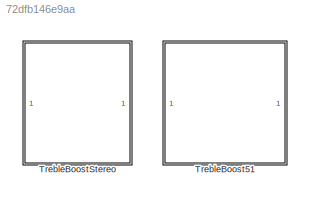
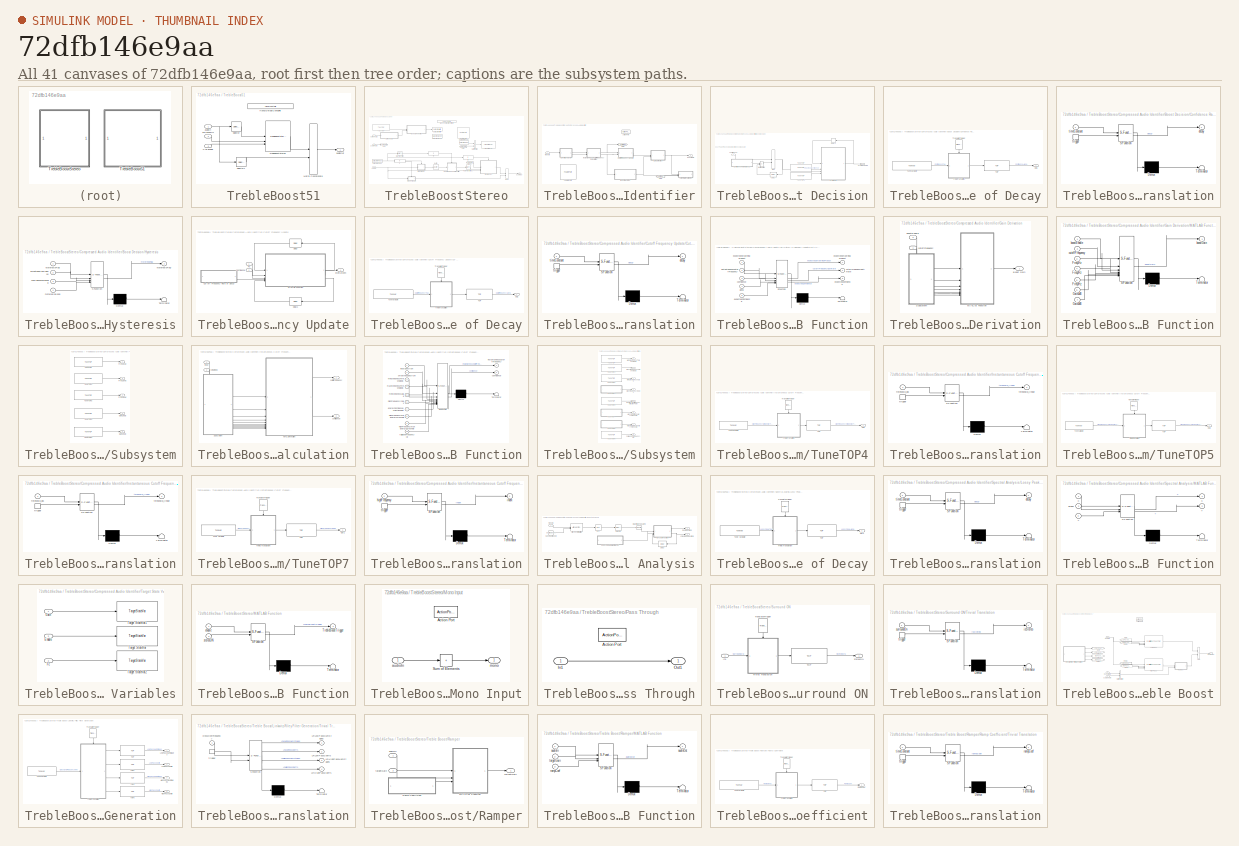
[diagram: thumbnail index - all 41 canvases of the model, root first then tree order]
MODEL slx_72dfb146e9aa
KIND library
CONFIG AbsTol = auto
CONFIG EnableMultiTasking = off
CONFIG FixedStep = auto
CONFIG MaxStep = auto
CONFIG MinStep = auto
CONFIG RelTol = 1e-3
CONFIG SampleTimeConstraint = Unconstrained
CONFIG SolverName = VariableStepAuto
CONFIG StartTime = 0.0
CONFIG StopTime = 10.0
BLOCK [SubSystem] TrebleBoost51
BLOCK [Inport] TrebleBoost51/CAE Enable
  Port = 3
BLOCK [Reference] TrebleBoost51/HandyDefaultConfigFile  REF=HandyTextFile/HandyTextFile
  SourceBlock = HandyTextFile/HandyTextFile
  SourceProductName = Bose Talaria
  SourceType = Talaria Handy Text File
BLOCK [Concatenate] TrebleBoost51/Matrix Concatenate
  ConcatenateDimension = 2
  Mode = Multidimensional array
BLOCK [Selector] TrebleBoost51/Selector
  IndexOptions = Select all,Index vector (dialog)
  Indices = [1 3],[1 2]
  InputPortWidth = 3
  NumberOfDimensions = 2
  OutputSizes = 1,1
BLOCK [Selector] TrebleBoost51/Selector1
  IndexOptions = Select all,Index vector (dialog)
  Indices = [1 3],3:6
  InputPortWidth = 3
  NumberOfDimensions = 2
  OutputSizes = 1,1
BLOCK [Reference] TrebleBoost51/TrebleBoostStereo  REF=$bdroot/TrebleBoostStereo
  SourceBlock = $bdroot/TrebleBoostStereo
BLOCK [Inport] TrebleBoost51/audioIn
  OutDataTypeStr = single
BLOCK [Outport] TrebleBoost51/audioOut
  OutDataTypeStr = single
  VectorParamsAs1DForOutWhenUnconnected = off
BLOCK [Inport] TrebleBoost51/surroundON
  Port = 2
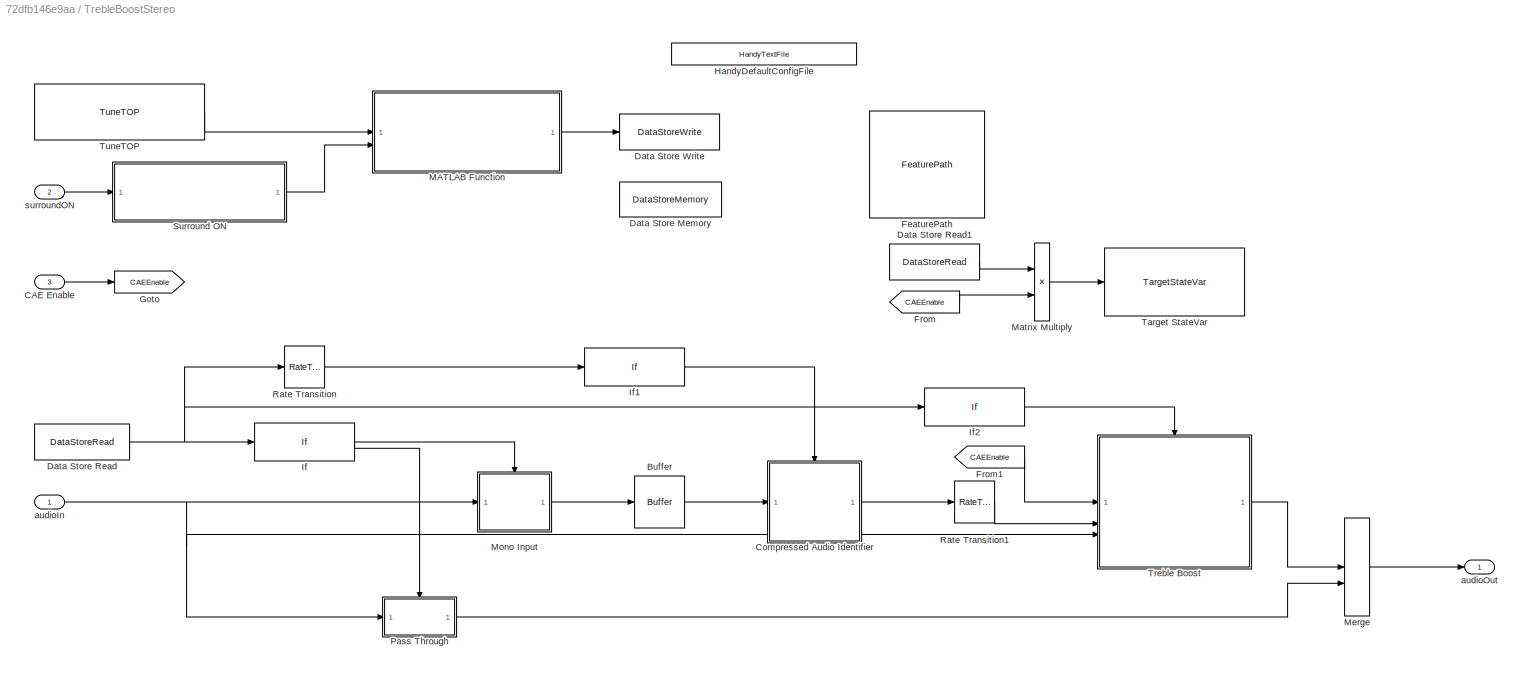
BLOCK [SubSystem] TrebleBoostStereo
BLOCK [Buffer] TrebleBoostStereo/Buffer
  N = Config.FftFrameSize
  OutputFrames = off
BLOCK [Inport] TrebleBoostStereo/CAE Enable
  Port = 3
BLOCK [SubSystem] TrebleBoostStereo/Compressed Audio Identifier
  TreatAsAtomicUnit = on
BLOCK [ActionPort] TrebleBoostStereo/Compressed Audio Identifier/Action Port
BLOCK [SubSystem] TrebleBoostStereo/Compressed Audio Identifier/Boost Decision
BLOCK [SubSystem] TrebleBoostStereo/Compressed Audio Identifier/Boost Decision/Confidence Rate of Decay
BLOCK [Outport] TrebleBoostStereo/Compressed Audio Identifier/Boost Decision/Confidence Rate of Decay/Out1
  VectorParamsAs1DForOutWhenUnconnected = off
BLOCK [Reference] TrebleBoostStereo/Compressed Audio Identifier/Boost Decision/Confidence Rate of Decay/TOP  REF=TOP/TOP
  SourceBlock = TOP/TOP
  SourceProductName = Bose Talaria
  SourceType = Talaria Target Overlay Parameter
BLOCK [Reference] TrebleBoostStereo/Compressed Audio Identifier/Boost Decision/Confidence Rate of Decay/TranslateTrigger  REF=TuneVar/TranslateTrigger
  NameLocation = left
  SourceBlock = TuneVar/TranslateTrigger
  SourceProductName = Bose Talaria
  SourceType = Talaria Translate Trigger
BLOCK [SubSystem] TrebleBoostStereo/Compressed Audio Identifier/Boost Decision/Confidence Rate of Decay/Trivial Translation
  ErrorFcn = Stateflow.Translate.translate
  PermitHierarchicalResolution = ExplicitOnly
  SFBlockType = MATLAB Function
  TreatAsAtomicUnit = on
BLOCK [Demux] TrebleBoostStereo/Compressed Audio Identifier/Boost Decision/Confidence Rate of Decay/Trivial Translation/ Demux 
  Outputs = 1
BLOCK [S-Function] TrebleBoostStereo/Compressed Audio Identifier/Boost Decision/Confidence Rate of Decay/Trivial Translation/ SFunction 
  EnableBusSupport = off
  FunctionName = sf_sfun
  Parameters = fftFrameSize,sampleRate
  PortCounts = [2 2]
  SFcnIsStateOwnerBlock = off
  SFunctionDeploymentMode = off
  Tag = Stateflow S-Function 133
BLOCK [Terminator] TrebleBoostStereo/Compressed Audio Identifier/Boost Decision/Confidence Rate of Decay/Trivial Translation/ Terminator 
BLOCK [Outport] TrebleBoostStereo/Compressed Audio Identifier/Boost Decision/Confidence Rate of Decay/Trivial Translation/decay
  VectorParamsAs1DForOutWhenUnconnected = off
BLOCK [Inport] TrebleBoostStereo/Compressed Audio Identifier/Boost Decision/Confidence Rate of Decay/Trivial Translation/timeConstant
BLOCK [TriggerPort] TrebleBoostStereo/Compressed Audio Identifier/Boost Decision/Confidence Rate of Decay/Trivial Translation/trigger
  ShowOutputPort = on
  StatesWhenEnabling = held
  TriggerType = function-call
  VariantControl = Variant
BLOCK [Reference] TrebleBoostStereo/Compressed Audio Identifier/Boost Decision/Confidence Rate of Decay/Tune Variable  REF=TuneVar/TuneVar
  SourceBlock = TuneVar/TuneVar
  SourceProductName = Bose Talaria
  SourceType = Talaria Tune Variable
BLOCK [Delay] TrebleBoostStereo/Compressed Audio Identifier/Boost Decision/Delay
  DelayLength = 1
  InitialCondition = 0
  InputPortMap = u0
  NameLocation = top
BLOCK [Delay] TrebleBoostStereo/Compressed Audio Identifier/Boost Decision/Delay1
  DelayLength = 1
  InitialCondition = 1
  InputPortMap = u0
BLOCK [SubSystem] TrebleBoostStereo/Compressed Audio Identifier/Boost Decision/Hysteresis
  ErrorFcn = Stateflow.Translate.translate
  PermitHierarchicalResolution = ExplicitOnly
  SFBlockType = MATLAB Function
  TreatAsAtomicUnit = on
BLOCK [Outport] TrebleBoostStereo/Compressed Audio Identifier/Boost Decision/Hysteresis Flag
  VectorParamsAs1DForOutWhenUnconnected = off
BLOCK [Demux] TrebleBoostStereo/Compressed Audio Identifier/Boost Decision/Hysteresis/ Demux 
  Outputs = 1
BLOCK [S-Function] TrebleBoostStereo/Compressed Audio Identifier/Boost Decision/Hysteresis/ SFunction 
  EnableBusSupport = off
  FunctionName = sf_sfun
  PortCounts = [4 2]
  SFcnIsStateOwnerBlock = off
  SFunctionDeploymentMode = off
  Tag = Stateflow S-Function 134
BLOCK [Terminator] TrebleBoostStereo/Compressed Audio Identifier/Boost Decision/Hysteresis/ Terminator 
BLOCK [Inport] TrebleBoostStereo/Compressed Audio Identifier/Boost Decision/Hysteresis/confidenceThreshold
  Port = 3
BLOCK [Inport] TrebleBoostStereo/Compressed Audio Identifier/Boost Decision/Hysteresis/hysteresisBand
  Port = 4
BLOCK [Outport] TrebleBoostStereo/Compressed Audio Identifier/Boost Decision/Hysteresis/hysteresisFlag
BLOCK [Inport] TrebleBoostStereo/Compressed Audio Identifier/Boost Decision/Hysteresis/hysteresisFlag 
BLOCK [Inport] TrebleBoostStereo/Compressed Audio Identifier/Boost Decision/Hysteresis/smoothedConfidence
  Port = 2
BLOCK [Product] TrebleBoostStereo/Compressed Audio Identifier/Boost Decision/Matrix Multiply
BLOCK [MinMax] TrebleBoostStereo/Compressed Audio Identifier/Boost Decision/Max
  Function = max
  Inputs = 2
BLOCK [Reference] TrebleBoostStereo/Compressed Audio Identifier/Boost Decision/TuneTOP  REF=TuneVar/TuneTOP
  SourceBlock = TuneVar/TuneTOP
  SourceProductName = Bose Talaria
  SourceType = Talaria Trivial Tune TOP
BLOCK [Reference] TrebleBoostStereo/Compressed Audio Identifier/Boost Decision/TuneTOP1  REF=TuneVar/TuneTOP
  SourceBlock = TuneVar/TuneTOP
  SourceProductName = Bose Talaria
  SourceType = Talaria Trivial Tune TOP
BLOCK [Inport] TrebleBoostStereo/Compressed Audio Identifier/Boost Decision/confidence
BLOCK [SubSystem] TrebleBoostStereo/Compressed Audio Identifier/Cutoff Frequency Update
BLOCK [SubSystem] TrebleBoostStereo/Compressed Audio Identifier/Cutoff Frequency Update/Cut-off Frequency Rate of Decay
BLOCK [Outport] TrebleBoostStereo/Compressed Audio Identifier/Cutoff Frequency Update/Cut-off Frequency Rate of Decay/Out1
  VectorParamsAs1DForOutWhenUnconnected = off
BLOCK [Reference] TrebleBoostStereo/Compressed Audio Identifier/Cutoff Frequency Update/Cut-off Frequency Rate of Decay/TOP  REF=TOP/TOP
  SourceBlock = TOP/TOP
  SourceProductName = Bose Talaria
  SourceType = Talaria Target Overlay Parameter
BLOCK [Reference] TrebleBoostStereo/Compressed Audio Identifier/Cutoff Frequency Update/Cut-off Frequency Rate of Decay/TranslateTrigger  REF=TuneVar/TranslateTrigger
  NameLocation = left
  SourceBlock = TuneVar/TranslateTrigger
  SourceProductName = Bose Talaria
  SourceType = Talaria Translate Trigger
BLOCK [SubSystem] TrebleBoostStereo/Compressed Audio Identifier/Cutoff Frequency Update/Cut-off Frequency Rate of Decay/Trivial Translation
  ErrorFcn = Stateflow.Translate.translate
  PermitHierarchicalResolution = ExplicitOnly
  SFBlockType = MATLAB Function
  TreatAsAtomicUnit = on
BLOCK [Demux] TrebleBoostStereo/Compressed Audio Identifier/Cutoff Frequency Update/Cut-off Frequency Rate of Decay/Trivial Translation/ Demux 
  Outputs = 1
BLOCK [S-Function] TrebleBoostStereo/Compressed Audio Identifier/Cutoff Frequency Update/Cut-off Frequency Rate of Decay/Trivial Translation/ SFunction 
  EnableBusSupport = off
  FunctionName = sf_sfun
  Parameters = fftFrameSize,sampleRate
  PortCounts = [2 2]
  SFcnIsStateOwnerBlock = off
  SFunctionDeploymentMode = off
  Tag = Stateflow S-Function 135
BLOCK [Terminator] TrebleBoostStereo/Compressed Audio Identifier/Cutoff Frequency Update/Cut-off Frequency Rate of Decay/Trivial Translation/ Terminator 
BLOCK [Outport] TrebleBoostStereo/Compressed Audio Identifier/Cutoff Frequency Update/Cut-off Frequency Rate of Decay/Trivial Translation/decay
  VectorParamsAs1DForOutWhenUnconnected = off
BLOCK [Inport] TrebleBoostStereo/Compressed Audio Identifier/Cutoff Frequency Update/Cut-off Frequency Rate of Decay/Trivial Translation/timeConstant
BLOCK [TriggerPort] TrebleBoostStereo/Compressed Audio Identifier/Cutoff Frequency Update/Cut-off Frequency Rate of Decay/Trivial Translation/trigger
  ShowOutputPort = on
  StatesWhenEnabling = held
  TriggerType = function-call
  VariantControl = Variant
BLOCK [Reference] TrebleBoostStereo/Compressed Audio Identifier/Cutoff Frequency Update/Cut-off Frequency Rate of Decay/Tune Variable  REF=TuneVar/TuneVar
  SourceBlock = TuneVar/TuneVar
  SourceProductName = Bose Talaria
  SourceType = Talaria Tune Variable
BLOCK [Delay] TrebleBoostStereo/Compressed Audio Identifier/Cutoff Frequency Update/Delay
  DelayLength = 1
  InitialCondition = 0
  InputPortMap = u0
  NameLocation = top
BLOCK [Delay] TrebleBoostStereo/Compressed Audio Identifier/Cutoff Frequency Update/Delay1
  DelayLength = 1
  InitialCondition = 0
  InputPortMap = u0
  NameLocation = top
BLOCK [Inport] TrebleBoostStereo/Compressed Audio Identifier/Cutoff Frequency Update/Fc
BLOCK [SubSystem] TrebleBoostStereo/Compressed Audio Identifier/Cutoff Frequency Update/MATLAB Function
  ErrorFcn = Stateflow.Translate.translate
  PermitHierarchicalResolution = ExplicitOnly
  SFBlockType = MATLAB Function
  TreatAsAtomicUnit = on
BLOCK [Demux] TrebleBoostStereo/Compressed Audio Identifier/Cutoff Frequency Update/MATLAB Function/ Demux 
  Outputs = 1
BLOCK [S-Function] TrebleBoostStereo/Compressed Audio Identifier/Cutoff Frequency Update/MATLAB Function/ SFunction 
  EnableBusSupport = off
  FunctionName = sf_sfun
  PortCounts = [5 4]
  SFcnIsStateOwnerBlock = off
  SFunctionDeploymentMode = off
  Tag = Stateflow S-Function 138
BLOCK [Terminator] TrebleBoostStereo/Compressed Audio Identifier/Cutoff Frequency Update/MATLAB Function/ Terminator 
BLOCK [Inport] TrebleBoostStereo/Compressed Audio Identifier/Cutoff Frequency Update/MATLAB Function/alpha
  Port = 4
BLOCK [Inport] TrebleBoostStereo/Compressed Audio Identifier/Cutoff Frequency Update/MATLAB Function/confidence
  Port = 3
BLOCK [Outport] TrebleBoostStereo/Compressed Audio Identifier/Cutoff Frequency Update/MATLAB Function/cutoffFrequencyEstimate
  Port = 2
  VectorParamsAs1DForOutWhenUnconnected = off
BLOCK [Outport] TrebleBoostStereo/Compressed Audio Identifier/Cutoff Frequency Update/MATLAB Function/expectedConfidence
  Port = 3
  VectorParamsAs1DForOutWhenUnconnected = off
BLOCK [Inport] TrebleBoostStereo/Compressed Audio Identifier/Cutoff Frequency Update/MATLAB Function/expectedConfidence 
  Port = 5
BLOCK [Outport] TrebleBoostStereo/Compressed Audio Identifier/Cutoff Frequency Update/MATLAB Function/expectedSmoothingProduct
  VectorParamsAs1DForOutWhenUnconnected = off
BLOCK [Inport] TrebleBoostStereo/Compressed Audio Identifier/Cutoff Frequency Update/MATLAB Function/expectedSmoothingProduct 
BLOCK [Inport] TrebleBoostStereo/Compressed Audio Identifier/Cutoff Frequency Update/MATLAB Function/instantaneousCutoffFrequency
  Port = 2
BLOCK [Inport] TrebleBoostStereo/Compressed Audio Identifier/Cutoff Frequency Update/confidence
  Port = 2
BLOCK [Outport] TrebleBoostStereo/Compressed Audio Identifier/Cutoff Frequency Update/estimatedFc
  VectorParamsAs1DForOutWhenUnconnected = off
BLOCK [Reference] TrebleBoostStereo/Compressed Audio Identifier/FeaturePath  REF=FeaturePath/FeaturePath
  SourceBlock = FeaturePath/FeaturePath
  SourceProductName = Bose Talaria
  SourceType = Talaria Feature Path
BLOCK [From] TrebleBoostStereo/Compressed Audio Identifier/From
  GotoTag = CutOffFreq
BLOCK [SubSystem] TrebleBoostStereo/Compressed Audio Identifier/Gain Derivation
BLOCK [Outport] TrebleBoostStereo/Compressed Audio Identifier/Gain Derivation/Boost Gain
  VectorParamsAs1DForOutWhenUnconnected = off
BLOCK [SubSystem] TrebleBoostStereo/Compressed Audio Identifier/Gain Derivation/MATLAB Function
  ErrorFcn = Stateflow.Translate.translate
  PermitHierarchicalResolution = ExplicitOnly
  SFBlockType = MATLAB Function
  TreatAsAtomicUnit = on
BLOCK [Demux] TrebleBoostStereo/Compressed Audio Identifier/Gain Derivation/MATLAB Function/ Demux 
  Outputs = 1
BLOCK [S-Function] TrebleBoostStereo/Compressed Audio Identifier/Gain Derivation/MATLAB Function/ SFunction 
  EnableBusSupport = off
  FunctionName = sf_sfun
  PortCounts = [7 2]
  SFcnIsStateOwnerBlock = off
  SFunctionDeploymentMode = off
  Tag = Stateflow S-Function 144
BLOCK [Terminator] TrebleBoostStereo/Compressed Audio Identifier/Gain Derivation/MATLAB Function/ Terminator 
BLOCK [Inport] TrebleBoostStereo/Compressed Audio Identifier/Gain Derivation/MATLAB Function/Freq1Hz
  Port = 3
BLOCK [Inport] TrebleBoostStereo/Compressed Audio Identifier/Gain Derivation/MATLAB Function/Freq2Hz
  Port = 4
BLOCK [Inport] TrebleBoostStereo/Compressed Audio Identifier/Gain Derivation/MATLAB Function/Freq3Hz
  Port = 5
BLOCK [Inport] TrebleBoostStereo/Compressed Audio Identifier/Gain Derivation/MATLAB Function/Gain1dB
  Port = 6
BLOCK [Inport] TrebleBoostStereo/Compressed Audio Identifier/Gain Derivation/MATLAB Function/Gain2dB
  Port = 7
BLOCK [Inport] TrebleBoostStereo/Compressed Audio Identifier/Gain Derivation/MATLAB Function/boostEnable
BLOCK [Outport] TrebleBoostStereo/Compressed Audio Identifier/Gain Derivation/MATLAB Function/boostGain
BLOCK [Inport] TrebleBoostStereo/Compressed Audio Identifier/Gain Derivation/MATLAB Function/cutoffFrequency
  Port = 2
BLOCK [SubSystem] TrebleBoostStereo/Compressed Audio Identifier/Gain Derivation/Subsystem
BLOCK [Outport] TrebleBoostStereo/Compressed Audio Identifier/Gain Derivation/Subsystem/Freq1InHz
BLOCK [Outport] TrebleBoostStereo/Compressed Audio Identifier/Gain Derivation/Subsystem/Freq2InHz
  Port = 2
BLOCK [Outport] TrebleBoostStereo/Compressed Audio Identifier/Gain Derivation/Subsystem/Freq3InHz
  Port = 3
BLOCK [Outport] TrebleBoostStereo/Compressed Audio Identifier/Gain Derivation/Subsystem/Gain1IndB
  Port = 4
BLOCK [Outport] TrebleBoostStereo/Compressed Audio Identifier/Gain Derivation/Subsystem/Gain2IndB
  Port = 5
BLOCK [Reference] TrebleBoostStereo/Compressed Audio Identifier/Gain Derivation/Subsystem/TuneTOP  REF=TuneVar/TuneTOP
  SourceBlock = TuneVar/TuneTOP
  SourceProductName = Bose Talaria
  SourceType = Talaria Trivial Tune TOP
BLOCK [Reference] TrebleBoostStereo/Compressed Audio Identifier/Gain Derivation/Subsystem/TuneTOP1  REF=TuneVar/TuneTOP
  SourceBlock = TuneVar/TuneTOP
  SourceProductName = Bose Talaria
  SourceType = Talaria Trivial Tune TOP
BLOCK [Reference] TrebleBoostStereo/Compressed Audio Identifier/Gain Derivation/Subsystem/TuneTOP2  REF=TuneVar/TuneTOP
  SourceBlock = TuneVar/TuneTOP
  SourceProductName = Bose Talaria
  SourceType = Talaria Trivial Tune TOP
BLOCK [Reference] TrebleBoostStereo/Compressed Audio Identifier/Gain Derivation/Subsystem/TuneTOP3  REF=TuneVar/TuneTOP
  SourceBlock = TuneVar/TuneTOP
  SourceProductName = Bose Talaria
  SourceType = Talaria Trivial Tune TOP
BLOCK [Reference] TrebleBoostStereo/Compressed Audio Identifier/Gain Derivation/Subsystem/TuneTOP4  REF=TuneVar/TuneTOP
  SourceBlock = TuneVar/TuneTOP
  SourceProductName = Bose Talaria
  SourceType = Talaria Trivial Tune TOP
BLOCK [Inport] TrebleBoostStereo/Compressed Audio Identifier/Gain Derivation/boostEnable
  Port = 2
BLOCK [Inport] TrebleBoostStereo/Compressed Audio Identifier/Gain Derivation/cutoffFrequency
BLOCK [Goto] TrebleBoostStereo/Compressed Audio Identifier/Goto
  GotoTag = CutOffFreq
BLOCK [SubSystem] TrebleBoostStereo/Compressed Audio Identifier/Instantaneous Cutoff Frequency Calculation
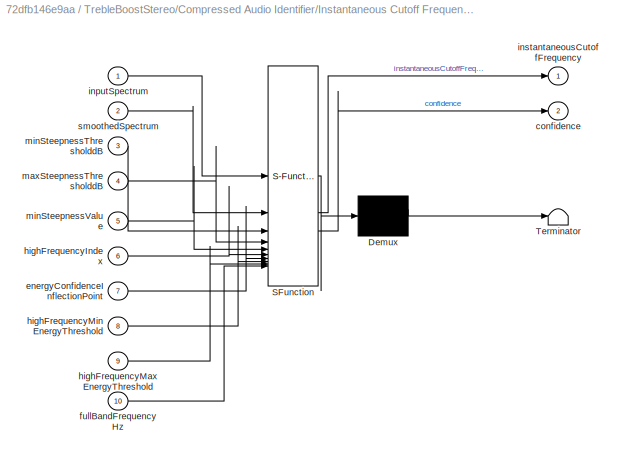
BLOCK [SubSystem] TrebleBoostStereo/Compressed Audio Identifier/Instantaneous Cutoff Frequency Calculation/MATLAB Function
  ErrorFcn = Stateflow.Translate.translate
  PermitHierarchicalResolution = ExplicitOnly
  SFBlockType = MATLAB Function
  TreatAsAtomicUnit = on
BLOCK [Demux] TrebleBoostStereo/Compressed Audio Identifier/Instantaneous Cutoff Frequency Calculation/MATLAB Function/ Demux 
  Outputs = 1
BLOCK [S-Function] TrebleBoostStereo/Compressed Audio Identifier/Instantaneous Cutoff Frequency Calculation/MATLAB Function/ SFunction 
  EnableBusSupport = off
  FunctionName = sf_sfun
  Parameters = frequencies,maxDetectionFrequencyIndex,minDetectionFrequencyIndex,spectrumSize,steepnessIndexRange
  PortCounts = [10 3]
  SFcnIsStateOwnerBlock = off
  SFunctionDeploymentMode = off
  Tag = Stateflow S-Function 145
BLOCK [Terminator] TrebleBoostStereo/Compressed Audio Identifier/Instantaneous Cutoff Frequency Calculation/MATLAB Function/ Terminator 
BLOCK [Outport] TrebleBoostStereo/Compressed Audio Identifier/Instantaneous Cutoff Frequency Calculation/MATLAB Function/confidence
  Port = 2
  VectorParamsAs1DForOutWhenUnconnected = off
BLOCK [Inport] TrebleBoostStereo/Compressed Audio Identifier/Instantaneous Cutoff Frequency Calculation/MATLAB Function/energyConfidenceInflectionPoint
  Port = 7
BLOCK [Inport] TrebleBoostStereo/Compressed Audio Identifier/Instantaneous Cutoff Frequency Calculation/MATLAB Function/fullBandFrequencyHz
  Port = 10
BLOCK [Inport] TrebleBoostStereo/Compressed Audio Identifier/Instantaneous Cutoff Frequency Calculation/MATLAB Function/highFrequencyIndex
  Port = 6
BLOCK [Inport] TrebleBoostStereo/Compressed Audio Identifier/Instantaneous Cutoff Frequency Calculation/MATLAB Function/highFrequencyMaxEnergyThreshold
  Port = 9
BLOCK [Inport] TrebleBoostStereo/Compressed Audio Identifier/Instantaneous Cutoff Frequency Calculation/MATLAB Function/highFrequencyMinEnergyThreshold
  Port = 8
BLOCK [Inport] TrebleBoostStereo/Compressed Audio Identifier/Instantaneous Cutoff Frequency Calculation/MATLAB Function/inputSpectrum
BLOCK [Outport] TrebleBoostStereo/Compressed Audio Identifier/Instantaneous Cutoff Frequency Calculation/MATLAB Function/instantaneousCutoffFrequency
  VectorParamsAs1DForOutWhenUnconnected = off
BLOCK [Inport] TrebleBoostStereo/Compressed Audio Identifier/Instantaneous Cutoff Frequency Calculation/MATLAB Function/maxSteepnessThresholddB
  Port = 4
BLOCK [Inport] TrebleBoostStereo/Compressed Audio Identifier/Instantaneous Cutoff Frequency Calculation/MATLAB Function/minSteepnessThresholddB
  Port = 3
BLOCK [Inport] TrebleBoostStereo/Compressed Audio Identifier/Instantaneous Cutoff Frequency Calculation/MATLAB Function/minSteepnessValue
  Port = 5
BLOCK [Inport] TrebleBoostStereo/Compressed Audio Identifier/Instantaneous Cutoff Frequency Calculation/MATLAB Function/smoothedSpectrum
  Port = 2
BLOCK [SubSystem] TrebleBoostStereo/Compressed Audio Identifier/Instantaneous Cutoff Frequency Calculation/Subsystem
BLOCK [Outport] TrebleBoostStereo/Compressed Audio Identifier/Instantaneous Cutoff Frequency Calculation/Subsystem/EnergyConfidenceInflectionPoint
  Port = 5
  VectorParamsAs1DForOutWhenUnconnected = off
BLOCK [Outport] TrebleBoostStereo/Compressed Audio Identifier/Instantaneous Cutoff Frequency Calculation/Subsystem/FullBandFrequencyHz
  Port = 8
  VectorParamsAs1DForOutWhenUnconnected = off
BLOCK [Outport] TrebleBoostStereo/Compressed Audio Identifier/Instantaneous Cutoff Frequency Calculation/Subsystem/HighFreqMaxEnergyThreshold
  Port = 7
  VectorParamsAs1DForOutWhenUnconnected = off
BLOCK [Outport] TrebleBoostStereo/Compressed Audio Identifier/Instantaneous Cutoff Frequency Calculation/Subsystem/HighFreqMinEnergyThreshold
  Port = 6
  VectorParamsAs1DForOutWhenUnconnected = off
BLOCK [Outport] TrebleBoostStereo/Compressed Audio Identifier/Instantaneous Cutoff Frequency Calculation/Subsystem/HighFrequencyIndex
  Port = 4
  VectorParamsAs1DForOutWhenUnconnected = off
BLOCK [Outport] TrebleBoostStereo/Compressed Audio Identifier/Instantaneous Cutoff Frequency Calculation/Subsystem/MaxSteepnessThresholddB
  Port = 2
  VectorParamsAs1DForOutWhenUnconnected = off
BLOCK [Outport] TrebleBoostStereo/Compressed Audio Identifier/Instantaneous Cutoff Frequency Calculation/Subsystem/MinSteepnessThresholddB
  VectorParamsAs1DForOutWhenUnconnected = off
BLOCK [Outport] TrebleBoostStereo/Compressed Audio Identifier/Instantaneous Cutoff Frequency Calculation/Subsystem/MinSteepnessValue
  Port = 3
  VectorParamsAs1DForOutWhenUnconnected = off
BLOCK [Reference] TrebleBoostStereo/Compressed Audio Identifier/Instantaneous Cutoff Frequency Calculation/Subsystem/TuneTOP  REF=TuneVar/TuneTOP
  SourceBlock = TuneVar/TuneTOP
  SourceProductName = Bose Talaria
  SourceType = Talaria Trivial Tune TOP
BLOCK [Reference] TrebleBoostStereo/Compressed Audio Identifier/Instantaneous Cutoff Frequency Calculation/Subsystem/TuneTOP1  REF=TuneVar/TuneTOP
  SourceBlock = TuneVar/TuneTOP
  SourceProductName = Bose Talaria
  SourceType = Talaria Trivial Tune TOP
BLOCK [Reference] TrebleBoostStereo/Compressed Audio Identifier/Instantaneous Cutoff Frequency Calculation/Subsystem/TuneTOP2  REF=TuneVar/TuneTOP
  SourceBlock = TuneVar/TuneTOP
  SourceProductName = Bose Talaria
  SourceType = Talaria Trivial Tune TOP
BLOCK [Reference] TrebleBoostStereo/Compressed Audio Identifier/Instantaneous Cutoff Frequency Calculation/Subsystem/TuneTOP3  REF=TuneVar/TuneTOP
  SourceBlock = TuneVar/TuneTOP
  SourceProductName = Bose Talaria
  SourceType = Talaria Trivial Tune TOP
BLOCK [SubSystem] TrebleBoostStereo/Compressed Audio Identifier/Instantaneous Cutoff Frequency Calculation/Subsystem/TuneTOP4
BLOCK [Outport] TrebleBoostStereo/Compressed Audio Identifier/Instantaneous Cutoff Frequency Calculation/Subsystem/TuneTOP4/Out1
  VectorParamsAs1DForOutWhenUnconnected = off
BLOCK [Reference] TrebleBoostStereo/Compressed Audio Identifier/Instantaneous Cutoff Frequency Calculation/Subsystem/TuneTOP4/TOP  REF=TOP/TOP
  SourceBlock = TOP/TOP
  SourceProductName = Bose Talaria
  SourceType = Talaria Target Overlay Parameter
BLOCK [Reference] TrebleBoostStereo/Compressed Audio Identifier/Instantaneous Cutoff Frequency Calculation/Subsystem/TuneTOP4/TranslateTrigger  REF=TuneVar/TranslateTrigger
  NameLocation = left
  SourceBlock = TuneVar/TranslateTrigger
  SourceProductName = Bose Talaria
  SourceType = Talaria Translate Trigger
BLOCK [SubSystem] TrebleBoostStereo/Compressed Audio Identifier/Instantaneous Cutoff Frequency Calculation/Subsystem/TuneTOP4/Trivial Translation
  ErrorFcn = Stateflow.Translate.translate
  PermitHierarchicalResolution = ExplicitOnly
  SFBlockType = MATLAB Function
  TreatAsAtomicUnit = on
BLOCK [Demux] TrebleBoostStereo/Compressed Audio Identifier/Instantaneous Cutoff Frequency Calculation/Subsystem/TuneTOP4/Trivial Translation/ Demux 
  Outputs = 1
BLOCK [S-Function] TrebleBoostStereo/Compressed Audio Identifier/Instantaneous Cutoff Frequency Calculation/Subsystem/TuneTOP4/Trivial Translation/ SFunction 
  EnableBusSupport = off
  FunctionName = sf_sfun
  PortCounts = [2 2]
  SFcnIsStateOwnerBlock = off
  SFunctionDeploymentMode = off
  Tag = Stateflow S-Function 146
BLOCK [Terminator] TrebleBoostStereo/Compressed Audio Identifier/Instantaneous Cutoff Frequency Calculation/Subsystem/TuneTOP4/Trivial Translation/ Terminator 
BLOCK [Inport] TrebleBoostStereo/Compressed Audio Identifier/Instantaneous Cutoff Frequency Calculation/Subsystem/TuneTOP4/Trivial Translation/threshold_dB
BLOCK [Outport] TrebleBoostStereo/Compressed Audio Identifier/Instantaneous Cutoff Frequency Calculation/Subsystem/TuneTOP4/Trivial Translation/threshold_linear
  VectorParamsAs1DForOutWhenUnconnected = off
BLOCK [TriggerPort] TrebleBoostStereo/Compressed Audio Identifier/Instantaneous Cutoff Frequency Calculation/Subsystem/TuneTOP4/Trivial Translation/trigger
  ShowOutputPort = on
  StatesWhenEnabling = held
  TriggerType = function-call
  VariantControl = Variant
BLOCK [Reference] TrebleBoostStereo/Compressed Audio Identifier/Instantaneous Cutoff Frequency Calculation/Subsystem/TuneTOP4/Tune Variable  REF=TuneVar/TuneVar
  SourceBlock = TuneVar/TuneVar
  SourceProductName = Bose Talaria
  SourceType = Talaria Tune Variable
BLOCK [SubSystem] TrebleBoostStereo/Compressed Audio Identifier/Instantaneous Cutoff Frequency Calculation/Subsystem/TuneTOP5
BLOCK [Outport] TrebleBoostStereo/Compressed Audio Identifier/Instantaneous Cutoff Frequency Calculation/Subsystem/TuneTOP5/Out1
  VectorParamsAs1DForOutWhenUnconnected = off
BLOCK [Reference] TrebleBoostStereo/Compressed Audio Identifier/Instantaneous Cutoff Frequency Calculation/Subsystem/TuneTOP5/TOP  REF=TOP/TOP
  SourceBlock = TOP/TOP
  SourceProductName = Bose Talaria
  SourceType = Talaria Target Overlay Parameter
BLOCK [Reference] TrebleBoostStereo/Compressed Audio Identifier/Instantaneous Cutoff Frequency Calculation/Subsystem/TuneTOP5/TranslateTrigger  REF=TuneVar/TranslateTrigger
  NameLocation = left
  SourceBlock = TuneVar/TranslateTrigger
  SourceProductName = Bose Talaria
  SourceType = Talaria Translate Trigger
BLOCK [SubSystem] TrebleBoostStereo/Compressed Audio Identifier/Instantaneous Cutoff Frequency Calculation/Subsystem/TuneTOP5/Trivial Translation
  ErrorFcn = Stateflow.Translate.translate
  PermitHierarchicalResolution = ExplicitOnly
  SFBlockType = MATLAB Function
  TreatAsAtomicUnit = on
BLOCK [Demux] TrebleBoostStereo/Compressed Audio Identifier/Instantaneous Cutoff Frequency Calculation/Subsystem/TuneTOP5/Trivial Translation/ Demux 
  Outputs = 1
BLOCK [S-Function] TrebleBoostStereo/Compressed Audio Identifier/Instantaneous Cutoff Frequency Calculation/Subsystem/TuneTOP5/Trivial Translation/ SFunction 
  EnableBusSupport = off
  FunctionName = sf_sfun
  PortCounts = [2 2]
  SFcnIsStateOwnerBlock = off
  SFunctionDeploymentMode = off
  Tag = Stateflow S-Function 147
BLOCK [Terminator] TrebleBoostStereo/Compressed Audio Identifier/Instantaneous Cutoff Frequency Calculation/Subsystem/TuneTOP5/Trivial Translation/ Terminator 
BLOCK [Inport] TrebleBoostStereo/Compressed Audio Identifier/Instantaneous Cutoff Frequency Calculation/Subsystem/TuneTOP5/Trivial Translation/threshold_dB
BLOCK [Outport] TrebleBoostStereo/Compressed Audio Identifier/Instantaneous Cutoff Frequency Calculation/Subsystem/TuneTOP5/Trivial Translation/threshold_linear
  VectorParamsAs1DForOutWhenUnconnected = off
BLOCK [TriggerPort] TrebleBoostStereo/Compressed Audio Identifier/Instantaneous Cutoff Frequency Calculation/Subsystem/TuneTOP5/Trivial Translation/trigger
  ShowOutputPort = on
  StatesWhenEnabling = held
  TriggerType = function-call
  VariantControl = Variant
BLOCK [Reference] TrebleBoostStereo/Compressed Audio Identifier/Instantaneous Cutoff Frequency Calculation/Subsystem/TuneTOP5/Tune Variable  REF=TuneVar/TuneVar
  SourceBlock = TuneVar/TuneVar
  SourceProductName = Bose Talaria
  SourceType = Talaria Tune Variable
BLOCK [Reference] TrebleBoostStereo/Compressed Audio Identifier/Instantaneous Cutoff Frequency Calculation/Subsystem/TuneTOP6  REF=TuneVar/TuneTOP
  SourceBlock = TuneVar/TuneTOP
  SourceProductName = Bose Talaria
  SourceType = Talaria Trivial Tune TOP
BLOCK [SubSystem] TrebleBoostStereo/Compressed Audio Identifier/Instantaneous Cutoff Frequency Calculation/Subsystem/TuneTOP7
BLOCK [Outport] TrebleBoostStereo/Compressed Audio Identifier/Instantaneous Cutoff Frequency Calculation/Subsystem/TuneTOP7/Out1
  VectorParamsAs1DForOutWhenUnconnected = off
BLOCK [Reference] TrebleBoostStereo/Compressed Audio Identifier/Instantaneous Cutoff Frequency Calculation/Subsystem/TuneTOP7/TOP  REF=TOP/TOP
  SourceBlock = TOP/TOP
  SourceProductName = Bose Talaria
  SourceType = Talaria Target Overlay Parameter
BLOCK [Reference] TrebleBoostStereo/Compressed Audio Identifier/Instantaneous Cutoff Frequency Calculation/Subsystem/TuneTOP7/TranslateTrigger  REF=TuneVar/TranslateTrigger
  NameLocation = left
  SourceBlock = TuneVar/TranslateTrigger
  SourceProductName = Bose Talaria
  SourceType = Talaria Translate Trigger
BLOCK [SubSystem] TrebleBoostStereo/Compressed Audio Identifier/Instantaneous Cutoff Frequency Calculation/Subsystem/TuneTOP7/Trivial Translation
  ErrorFcn = Stateflow.Translate.translate
  PermitHierarchicalResolution = ExplicitOnly
  SFBlockType = MATLAB Function
  TreatAsAtomicUnit = on
BLOCK [Demux] TrebleBoostStereo/Compressed Audio Identifier/Instantaneous Cutoff Frequency Calculation/Subsystem/TuneTOP7/Trivial Translation/ Demux 
  Outputs = 1
BLOCK [S-Function] TrebleBoostStereo/Compressed Audio Identifier/Instantaneous Cutoff Frequency Calculation/Subsystem/TuneTOP7/Trivial Translation/ SFunction 
  EnableBusSupport = off
  FunctionName = sf_sfun
  Parameters = fftFrameSize,sampleRate
  PortCounts = [2 2]
  SFcnIsStateOwnerBlock = off
  SFunctionDeploymentMode = off
  Tag = Stateflow S-Function 148
BLOCK [Terminator] TrebleBoostStereo/Compressed Audio Identifier/Instantaneous Cutoff Frequency Calculation/Subsystem/TuneTOP7/Trivial Translation/ Terminator 
BLOCK [Inport] TrebleBoostStereo/Compressed Audio Identifier/Instantaneous Cutoff Frequency Calculation/Subsystem/TuneTOP7/Trivial Translation/highFrequency
BLOCK [Outport] TrebleBoostStereo/Compressed Audio Identifier/Instantaneous Cutoff Frequency Calculation/Subsystem/TuneTOP7/Trivial Translation/index
  VectorParamsAs1DForOutWhenUnconnected = off
BLOCK [TriggerPort] TrebleBoostStereo/Compressed Audio Identifier/Instantaneous Cutoff Frequency Calculation/Subsystem/TuneTOP7/Trivial Translation/trigger
  ShowOutputPort = on
  StatesWhenEnabling = held
  TriggerType = function-call
  VariantControl = Variant
BLOCK [Reference] TrebleBoostStereo/Compressed Audio Identifier/Instantaneous Cutoff Frequency Calculation/Subsystem/TuneTOP7/Tune Variable  REF=TuneVar/TuneVar
  SourceBlock = TuneVar/TuneVar
  SourceProductName = Bose Talaria
  SourceType = Talaria Tune Variable
BLOCK [Outport] TrebleBoostStereo/Compressed Audio Identifier/Instantaneous Cutoff Frequency Calculation/confidence
  OutDataTypeStr = single
  Port = 2
  VectorParamsAs1DForOutWhenUnconnected = off
BLOCK [Outport] TrebleBoostStereo/Compressed Audio Identifier/Instantaneous Cutoff Frequency Calculation/cutoffFrequency
  VectorParamsAs1DForOutWhenUnconnected = off
BLOCK [Inport] TrebleBoostStereo/Compressed Audio Identifier/Instantaneous Cutoff Frequency Calculation/input
BLOCK [Inport] TrebleBoostStereo/Compressed Audio Identifier/Instantaneous Cutoff Frequency Calculation/smoothed
  Port = 2
BLOCK [SubSystem] TrebleBoostStereo/Compressed Audio Identifier/Spectral Analysis
BLOCK [Reference] TrebleBoostStereo/Compressed Audio Identifier/Spectral Analysis/Array-Vector Multiply  REF=dspmtrx3/Array-Vector
Multiply
  SourceBlock = dspmtrx3/Array-Vector\nMultiply
  SourceType = Array-Vector Multiply
BLOCK [Delay] TrebleBoostStereo/Compressed Audio Identifier/Spectral Analysis/Delay
  DelayLength = 1
  InitialCondition = zeros(1, Config.SpectrumSize, 'single')
  InputPortMap = u0
  NameLocation = top
BLOCK [Reference] TrebleBoostStereo/Compressed Audio Identifier/Spectral Analysis/FFT  REF=dspxfrm3/FFT
  SourceBlock = dspxfrm3/FFT
  SourceType = FFT
BLOCK [Constant] TrebleBoostStereo/Compressed Audio Identifier/Spectral Analysis/Hanning Window
  OutDataTypeStr = single
  SampleTime = Inf
  Value = Config.HannWindow
  VectorParams1D = off
BLOCK [SubSystem] TrebleBoostStereo/Compressed Audio Identifier/Spectral Analysis/Lossy Peak Rate of Decay
BLOCK [Outport] TrebleBoostStereo/Compressed Audio Identifier/Spectral Analysis/Lossy Peak Rate of Decay/Out1
  VectorParamsAs1DForOutWhenUnconnected = off
BLOCK [Reference] TrebleBoostStereo/Compressed Audio Identifier/Spectral Analysis/Lossy Peak Rate of Decay/TOP  REF=TOP/TOP
  SourceBlock = TOP/TOP
  SourceProductName = Bose Talaria
  SourceType = Talaria Target Overlay Parameter
BLOCK [Reference] TrebleBoostStereo/Compressed Audio Identifier/Spectral Analysis/Lossy Peak Rate of Decay/TranslateTrigger  REF=TuneVar/TranslateTrigger
  NameLocation = left
  SourceBlock = TuneVar/TranslateTrigger
  SourceProductName = Bose Talaria
  SourceType = Talaria Translate Trigger
BLOCK [SubSystem] TrebleBoostStereo/Compressed Audio Identifier/Spectral Analysis/Lossy Peak Rate of Decay/Trivial Translation
  ErrorFcn = Stateflow.Translate.translate
  PermitHierarchicalResolution = ExplicitOnly
  SFBlockType = MATLAB Function
  TreatAsAtomicUnit = on
BLOCK [Demux] TrebleBoostStereo/Compressed Audio Identifier/Spectral Analysis/Lossy Peak Rate of Decay/Trivial Translation/ Demux 
  Outputs = 1
BLOCK [S-Function] TrebleBoostStereo/Compressed Audio Identifier/Spectral Analysis/Lossy Peak Rate of Decay/Trivial Translation/ SFunction 
  EnableBusSupport = off
  FunctionName = sf_sfun
  Parameters = fftFrameSize,sampleRate
  PortCounts = [2 2]
  SFcnIsStateOwnerBlock = off
  SFunctionDeploymentMode = off
  Tag = Stateflow S-Function 149
BLOCK [Terminator] TrebleBoostStereo/Compressed Audio Identifier/Spectral Analysis/Lossy Peak Rate of Decay/Trivial Translation/ Terminator 
BLOCK [Outport] TrebleBoostStereo/Compressed Audio Identifier/Spectral Analysis/Lossy Peak Rate of Decay/Trivial Translation/decay
  VectorParamsAs1DForOutWhenUnconnected = off
BLOCK [Inport] TrebleBoostStereo/Compressed Audio Identifier/Spectral Analysis/Lossy Peak Rate of Decay/Trivial Translation/timeConstant
BLOCK [TriggerPort] TrebleBoostStereo/Compressed Audio Identifier/Spectral Analysis/Lossy Peak Rate of Decay/Trivial Translation/trigger
  ShowOutputPort = on
  StatesWhenEnabling = held
  TriggerType = function-call
  VariantControl = Variant
BLOCK [Reference] TrebleBoostStereo/Compressed Audio Identifier/Spectral Analysis/Lossy Peak Rate of Decay/Tune Variable  REF=TuneVar/TuneVar
  SourceBlock = TuneVar/TuneVar
  SourceProductName = Bose Talaria
  SourceType = Talaria Tune Variable
BLOCK [SubSystem] TrebleBoostStereo/Compressed Audio Identifier/Spectral Analysis/MATLAB Function
  ErrorFcn = Stateflow.Translate.translate
  PermitHierarchicalResolution = ExplicitOnly
  SFBlockType = MATLAB Function
  TreatAsAtomicUnit = on
BLOCK [Demux] TrebleBoostStereo/Compressed Audio Identifier/Spectral Analysis/MATLAB Function/ Demux 
  Outputs = 1
BLOCK [S-Function] TrebleBoostStereo/Compressed Audio Identifier/Spectral Analysis/MATLAB Function/ SFunction 
  EnableBusSupport = off
  FunctionName = sf_sfun
  Parameters = spectrumSize
  PortCounts = [3 3]
  SFcnIsStateOwnerBlock = off
  SFunctionDeploymentMode = off
  Tag = Stateflow S-Function 150
BLOCK [Terminator] TrebleBoostStereo/Compressed Audio Identifier/Spectral Analysis/MATLAB Function/ Terminator 
BLOCK [Outport] TrebleBoostStereo/Compressed Audio Identifier/Spectral Analysis/MATLAB Function/X
BLOCK [Inport] TrebleBoostStereo/Compressed Audio Identifier/Spectral Analysis/MATLAB Function/X 
BLOCK [Outport] TrebleBoostStereo/Compressed Audio Identifier/Spectral Analysis/MATLAB Function/Y
  Port = 2
  VectorParamsAs1DForOutWhenUnconnected = off
BLOCK [Inport] TrebleBoostStereo/Compressed Audio Identifier/Spectral Analysis/MATLAB Function/Y 
  Port = 3
BLOCK [Inport] TrebleBoostStereo/Compressed Audio Identifier/Spectral Analysis/MATLAB Function/alpha
  Port = 2
BLOCK [Math] TrebleBoostStereo/Compressed Audio Identifier/Spectral Analysis/Magnitude Squared
  Operator = magnitude^2
  SignedPower = on
BLOCK [Selector] TrebleBoostStereo/Compressed Audio Identifier/Spectral Analysis/Selector
  IndexOptions = Index vector (dialog),Select all
  Indices = 1:Config.SpectrumSize,1
  InputPortWidth = 3
  NumberOfDimensions = 2
  OutputSizes = 1,1
BLOCK [Outport] TrebleBoostStereo/Compressed Audio Identifier/Spectral Analysis/inputSpectrum
  VectorParamsAs1DForOutWhenUnconnected = off
BLOCK [Inport] TrebleBoostStereo/Compressed Audio Identifier/Spectral Analysis/monoIn
BLOCK [Outport] TrebleBoostStereo/Compressed Audio Identifier/Spectral Analysis/smoothedSpectrum
  Port = 2
  VectorParamsAs1DForOutWhenUnconnected = off
BLOCK [SubSystem] TrebleBoostStereo/Compressed Audio Identifier/Target State Variables
BLOCK [Inport] TrebleBoostStereo/Compressed Audio Identifier/Target State Variables/Enable
  Port = 2
BLOCK [Inport] TrebleBoostStereo/Compressed Audio Identifier/Target State Variables/Fc
  Port = 3
BLOCK [Inport] TrebleBoostStereo/Compressed Audio Identifier/Target State Variables/Gain
BLOCK [Reference] TrebleBoostStereo/Compressed Audio Identifier/Target State Variables/Target StateVar  REF=StateVar/TargetStateVar
  SourceBlock = StateVar/TargetStateVar
  SourceProductName = Bose Talaria
  SourceType = Talaria Target State Variable
BLOCK [Reference] TrebleBoostStereo/Compressed Audio Identifier/Target State Variables/Target StateVar1  REF=StateVar/TargetStateVar
  SourceBlock = StateVar/TargetStateVar
  SourceProductName = Bose Talaria
  SourceType = Talaria Target State Variable
BLOCK [Reference] TrebleBoostStereo/Compressed Audio Identifier/Target State Variables/Target StateVar2  REF=StateVar/TargetStateVar
  SourceBlock = StateVar/TargetStateVar
  SourceProductName = Bose Talaria
  SourceType = Talaria Target State Variable
BLOCK [Outport] TrebleBoostStereo/Compressed Audio Identifier/boostGain
  VectorParamsAs1DForOutWhenUnconnected = off
BLOCK [Inport] TrebleBoostStereo/Compressed Audio Identifier/monoIn
BLOCK [DataStoreMemory] TrebleBoostStereo/Data Store Memory
  DataStoreName = TrebleBoostTrigger
  InitialValue = 1
  ReadBeforeWriteMsg = warning
  ShowAdditionalParam = off
  WriteAfterReadMsg = warning
  WriteAfterWriteMsg = warning
BLOCK [DataStoreRead] TrebleBoostStereo/Data Store Read
  DataStoreName = TrebleBoostTrigger
  IndexOptions = Index vector (dialog)
  Indices = 1
  OutputSizes = 1
BLOCK [DataStoreRead] TrebleBoostStereo/Data Store Read1
  DataStoreName = TrebleBoostTrigger
  IndexOptions = Index vector (dialog)
  Indices = 1
  OutputSizes = 1
BLOCK [DataStoreWrite] TrebleBoostStereo/Data Store Write
  DataStoreName = TrebleBoostTrigger
  IndexOptions = Index vector (dialog)
  Indices = 1
  OutputSizes = 1
BLOCK [Reference] TrebleBoostStereo/FeaturePath  REF=FeaturePath/FeaturePath
  SourceBlock = FeaturePath/FeaturePath
  SourceProductName = Bose Talaria
  SourceType = Talaria Feature Path
BLOCK [From] TrebleBoostStereo/From
  GotoTag = CAEEnable
BLOCK [From] TrebleBoostStereo/From1
  GotoTag = CAEEnable
BLOCK [Goto] TrebleBoostStereo/Goto
  GotoTag = CAEEnable
BLOCK [Reference] TrebleBoostStereo/HandyDefaultConfigFile  REF=HandyTextFile/HandyTextFile
  SourceBlock = HandyTextFile/HandyTextFile
  SourceProductName = Bose Talaria
  SourceType = Talaria Handy Text File
BLOCK [If] TrebleBoostStereo/If
  IfExpression = (u1 ~= 0)
BLOCK [If] TrebleBoostStereo/If1
  IfExpression = (u1 ~= 0)
  ShowElse = off
BLOCK [If] TrebleBoostStereo/If2
  IfExpression = (u1 ~= 0)
  ShowElse = off
BLOCK [SubSystem] TrebleBoostStereo/MATLAB Function
  ErrorFcn = Stateflow.Translate.translate
  PermitHierarchicalResolution = ExplicitOnly
  SFBlockType = MATLAB Function
  TreatAsAtomicUnit = on
BLOCK [Demux] TrebleBoostStereo/MATLAB Function/ Demux 
  Outputs = 1
BLOCK [S-Function] TrebleBoostStereo/MATLAB Function/ SFunction 
  EnableBusSupport = off
  FunctionName = sf_sfun
  PortCounts = [2 2]
  SFcnIsStateOwnerBlock = off
  SFunctionDeploymentMode = off
  Tag = Stateflow S-Function 151
BLOCK [Terminator] TrebleBoostStereo/MATLAB Function/ Terminator 
BLOCK [Outport] TrebleBoostStereo/MATLAB Function/TrebleBoostTrigger
  VectorParamsAs1DForOutWhenUnconnected = off
BLOCK [Inport] TrebleBoostStereo/MATLAB Function/enable
BLOCK [Inport] TrebleBoostStereo/MATLAB Function/stereoON
  Port = 2
BLOCK [Product] TrebleBoostStereo/Matrix Multiply
  OutDataTypeStr = double
BLOCK [Merge] TrebleBoostStereo/Merge
BLOCK [SubSystem] TrebleBoostStereo/Mono Input
  TreatAsAtomicUnit = on
BLOCK [ActionPort] TrebleBoostStereo/Mono Input/Action Port
BLOCK [Sum] TrebleBoostStereo/Mono Input/Sum of Elements
  CollapseDim = 2
  CollapseMode = Specified dimension
  IconShape = rectangular
  Inputs = +
BLOCK [Inport] TrebleBoostStereo/Mono Input/audioIn
BLOCK [Outport] TrebleBoostStereo/Mono Input/mono
  VectorParamsAs1DForOutWhenUnconnected = off
BLOCK [SubSystem] TrebleBoostStereo/Pass Through
  TreatAsAtomicUnit = on
BLOCK [ActionPort] TrebleBoostStereo/Pass Through/Action Port
BLOCK [Inport] TrebleBoostStereo/Pass Through/In1
BLOCK [Outport] TrebleBoostStereo/Pass Through/Out1
  VectorParamsAs1DForOutWhenUnconnected = off
BLOCK [RateTransition] TrebleBoostStereo/Rate Transition
  Integrity = off
  OutPortSampleTimeMultiple = 8
  OutPortSampleTimeOpt = Multiple of input port sample time
BLOCK [RateTransition] TrebleBoostStereo/Rate Transition1
  Integrity = off
  OutPortSampleTimeMultiple = 1/8
  OutPortSampleTimeOpt = Multiple of input port sample time
BLOCK [SubSystem] TrebleBoostStereo/Surround ON
BLOCK [Inport] TrebleBoostStereo/Surround ON/In1
BLOCK [Reference] TrebleBoostStereo/Surround ON/TOP  REF=TOP/TOP
  SourceBlock = TOP/TOP
  SourceProductName = Bose Talaria
  SourceType = Talaria Target Overlay Parameter
BLOCK [Reference] TrebleBoostStereo/Surround ON/TranslateTrigger  REF=TuneVar/TranslateTrigger
  NameLocation = left
  SourceBlock = TuneVar/TranslateTrigger
  SourceProductName = Bose Talaria
  SourceType = Talaria Translate Trigger
BLOCK [SubSystem] TrebleBoostStereo/Surround ON/Trivial Translation
  ErrorFcn = Stateflow.Translate.translate
  PermitHierarchicalResolution = ExplicitOnly
  SFBlockType = MATLAB Function
  TreatAsAtomicUnit = on
BLOCK [Demux] TrebleBoostStereo/Surround ON/Trivial Translation/ Demux 
  Outputs = 1
BLOCK [S-Function] TrebleBoostStereo/Surround ON/Trivial Translation/ SFunction 
  EnableBusSupport = off
  FunctionName = sf_sfun
  PortCounts = [2 2]
  SFcnIsStateOwnerBlock = off
  SFunctionDeploymentMode = off
  Tag = Stateflow S-Function 152
BLOCK [Terminator] TrebleBoostStereo/Surround ON/Trivial Translation/ Terminator 
BLOCK [Outport] TrebleBoostStereo/Surround ON/Trivial Translation/isStereo
  VectorParamsAs1DForOutWhenUnconnected = off
BLOCK [Inport] TrebleBoostStereo/Surround ON/Trivial Translation/surroundOn
BLOCK [TriggerPort] TrebleBoostStereo/Surround ON/Trivial Translation/trigger
  ShowOutputPort = on
  StatesWhenEnabling = held
  TriggerType = function-call
  VariantControl = Variant
BLOCK [Outport] TrebleBoostStereo/Surround ON/stereoON
  VectorParamsAs1DForOutWhenUnconnected = off
BLOCK [Reference] TrebleBoostStereo/Target StateVar  REF=StateVar/TargetStateVar
  SourceBlock = StateVar/TargetStateVar
  SourceProductName = Bose Talaria
  SourceType = Talaria Target State Variable
BLOCK [SubSystem] TrebleBoostStereo/Treble Boost
  TreatAsAtomicUnit = on
BLOCK [ActionPort] TrebleBoostStereo/Treble Boost/Action Port
BLOCK [Sum] TrebleBoostStereo/Treble Boost/Add
  IconShape = rectangular
BLOCK [Inport] TrebleBoostStereo/Treble Boost/CAE Enable
BLOCK [From] TrebleBoostStereo/Treble Boost/From
  GotoTag = LowPassNumStages
BLOCK [From] TrebleBoostStereo/Treble Boost/From1
  GotoTag = LowPassCoeffs
BLOCK [From] TrebleBoostStereo/Treble Boost/From2
  GotoTag = HighPassNumStages
BLOCK [From] TrebleBoostStereo/Treble Boost/From3
  GotoTag = HighPassCoeffs
BLOCK [Goto] TrebleBoostStereo/Treble Boost/Goto
  GotoTag = LowPassNumStages
BLOCK [Goto] TrebleBoostStereo/Treble Boost/Goto1
  GotoTag = LowPassCoeffs
BLOCK [Goto] TrebleBoostStereo/Treble Boost/Goto2
  GotoTag = HighPassNumStages
BLOCK [Goto] TrebleBoostStereo/Treble Boost/Goto3
  GotoTag = HighPassCoeffs
BLOCK [Reference] TrebleBoostStereo/Treble Boost/HighPass  REF=PooliirLib/Pooliir with no TuneTOP
  SourceBlock = PooliirLib/Pooliir with no TuneTOP
BLOCK [SubSystem] TrebleBoostStereo/Treble Boost/Linkwitz-Riley Filter Generation
BLOCK [Outport] TrebleBoostStereo/Treble Boost/Linkwitz-Riley Filter Generation/HighPassCoeffs
  Port = 4
  VectorParamsAs1DForOutWhenUnconnected = off
BLOCK [Outport] TrebleBoostStereo/Treble Boost/Linkwitz-Riley Filter Generation/HighPassNumStages
  Port = 3
  VectorParamsAs1DForOutWhenUnconnected = off
BLOCK [Outport] TrebleBoostStereo/Treble Boost/Linkwitz-Riley Filter Generation/LowPassCoeffs
  Port = 2
  VectorParamsAs1DForOutWhenUnconnected = off
BLOCK [Outport] TrebleBoostStereo/Treble Boost/Linkwitz-Riley Filter Generation/LowPassNumStages
  VectorParamsAs1DForOutWhenUnconnected = off
BLOCK [Reference] TrebleBoostStereo/Treble Boost/Linkwitz-Riley Filter Generation/TOP  REF=TOP/TOP
  SourceBlock = TOP/TOP
  SourceProductName = Bose Talaria
  SourceType = Talaria Target Overlay Parameter
BLOCK [Reference] TrebleBoostStereo/Treble Boost/Linkwitz-Riley Filter Generation/TOP1  REF=TOP/TOP
  SourceBlock = TOP/TOP
  SourceProductName = Bose Talaria
  SourceType = Talaria Target Overlay Parameter
BLOCK [Reference] TrebleBoostStereo/Treble Boost/Linkwitz-Riley Filter Generation/TOP2  REF=TOP/TOP
  SourceBlock = TOP/TOP
  SourceProductName = Bose Talaria
  SourceType = Talaria Target Overlay Parameter
BLOCK [Reference] TrebleBoostStereo/Treble Boost/Linkwitz-Riley Filter Generation/TOP3  REF=TOP/TOP
  SourceBlock = TOP/TOP
  SourceProductName = Bose Talaria
  SourceType = Talaria Target Overlay Parameter
BLOCK [Reference] TrebleBoostStereo/Treble Boost/Linkwitz-Riley Filter Generation/TranslateTrigger  REF=TuneVar/TranslateTrigger
  NameLocation = left
  SourceBlock = TuneVar/TranslateTrigger
  SourceProductName = Bose Talaria
  SourceType = Talaria Translate Trigger
BLOCK [SubSystem] TrebleBoostStereo/Treble Boost/Linkwitz-Riley Filter Generation/Trivial Translation
  ErrorFcn = Stateflow.Translate.translate
  PermitHierarchicalResolution = ExplicitOnly
  SFBlockType = MATLAB Function
  TreatAsAtomicUnit = on
BLOCK [Demux] TrebleBoostStereo/Treble Boost/Linkwitz-Riley Filter Generation/Trivial Translation/ Demux 
  Outputs = 1
BLOCK [S-Function] TrebleBoostStereo/Treble Boost/Linkwitz-Riley Filter Generation/Trivial Translation/ SFunction 
  EnableBusSupport = off
  FunctionName = sf_sfun
  Parameters = filterOrder,maxNumStages,numChannels,sampleRate
  PortCounts = [2 5]
  SFcnIsStateOwnerBlock = off
  SFunctionDeploymentMode = off
  Tag = Stateflow S-Function 153
BLOCK [Terminator] TrebleBoostStereo/Treble Boost/Linkwitz-Riley Filter Generation/Trivial Translation/ Terminator 
BLOCK [Outport] TrebleBoostStereo/Treble Boost/Linkwitz-Riley Filter Generation/Trivial Translation/LRHighPassCoeffs
  Port = 4
  VectorParamsAs1DForOutWhenUnconnected = off
BLOCK [Outport] TrebleBoostStereo/Treble Boost/Linkwitz-Riley Filter Generation/Trivial Translation/LRHighPassNumStages
  Port = 3
  VectorParamsAs1DForOutWhenUnconnected = off
BLOCK [Outport] TrebleBoostStereo/Treble Boost/Linkwitz-Riley Filter Generation/Trivial Translation/LRLowPassCoeffs
  Port = 2
  VectorParamsAs1DForOutWhenUnconnected = off
BLOCK [Outport] TrebleBoostStereo/Treble Boost/Linkwitz-Riley Filter Generation/Trivial Translation/LRLowPassNumStages
  VectorParamsAs1DForOutWhenUnconnected = off
BLOCK [Inport] TrebleBoostStereo/Treble Boost/Linkwitz-Riley Filter Generation/Trivial Translation/crossOverFrequency
BLOCK [TriggerPort] TrebleBoostStereo/Treble Boost/Linkwitz-Riley Filter Generation/Trivial Translation/trigger
  ShowOutputPort = on
  StatesWhenEnabling = held
  TriggerType = function-call
  VariantControl = Variant
BLOCK [Reference] TrebleBoostStereo/Treble Boost/Linkwitz-Riley Filter Generation/Tune Variable  REF=TuneVar/TuneVar
  SourceBlock = TuneVar/TuneVar
  SourceProductName = Bose Talaria
  SourceType = Talaria Tune Variable
BLOCK [Reference] TrebleBoostStereo/Treble Boost/LowPass  REF=PooliirLib/Pooliir with no TuneTOP
  SourceBlock = PooliirLib/Pooliir with no TuneTOP
BLOCK [Product] TrebleBoostStereo/Treble Boost/Matrix Multiply
BLOCK [SubSystem] TrebleBoostStereo/Treble Boost/Ramper
BLOCK [SubSystem] TrebleBoostStereo/Treble Boost/Ramper/MATLAB Function
  ErrorFcn = Stateflow.Translate.translate
  PermitHierarchicalResolution = ExplicitOnly
  SFBlockType = MATLAB Function
  TreatAsAtomicUnit = on
BLOCK [Demux] TrebleBoostStereo/Treble Boost/Ramper/MATLAB Function/ Demux 
  Outputs = 1
BLOCK [S-Function] TrebleBoostStereo/Treble Boost/Ramper/MATLAB Function/ SFunction 
  EnableBusSupport = off
  FunctionName = sf_sfun
  PortCounts = [3 2]
  SFcnIsStateOwnerBlock = off
  SFunctionDeploymentMode = off
  Tag = Stateflow S-Function 154
BLOCK [Terminator] TrebleBoostStereo/Treble Boost/Ramper/MATLAB Function/ Terminator 
BLOCK [Inport] TrebleBoostStereo/Treble Boost/Ramper/MATLAB Function/audioIn
BLOCK [Outport] TrebleBoostStereo/Treble Boost/Ramper/MATLAB Function/audioOut
BLOCK [Inport] TrebleBoostStereo/Treble Boost/Ramper/MATLAB Function/rampCoef
  Port = 3
BLOCK [Inport] TrebleBoostStereo/Treble Boost/Ramper/MATLAB Function/targetGain
  Port = 2
BLOCK [SubSystem] TrebleBoostStereo/Treble Boost/Ramper/Ramp Coefficient
BLOCK [Outport] TrebleBoostStereo/Treble Boost/Ramper/Ramp Coefficient/RampCoef
  VectorParamsAs1DForOutWhenUnconnected = off
BLOCK [Reference] TrebleBoostStereo/Treble Boost/Ramper/Ramp Coefficient/TOP  REF=TOP/TOP
  SourceBlock = TOP/TOP
  SourceProductName = Bose Talaria
  SourceType = Talaria Target Overlay Parameter
BLOCK [Reference] TrebleBoostStereo/Treble Boost/Ramper/Ramp Coefficient/TranslateTrigger  REF=TuneVar/TranslateTrigger
  NameLocation = left
  SourceBlock = TuneVar/TranslateTrigger
  SourceProductName = Bose Talaria
  SourceType = Talaria Translate Trigger
BLOCK [SubSystem] TrebleBoostStereo/Treble Boost/Ramper/Ramp Coefficient/Trivial Translation
  ErrorFcn = Stateflow.Translate.translate
  PermitHierarchicalResolution = ExplicitOnly
  SFBlockType = MATLAB Function
  TreatAsAtomicUnit = on
BLOCK [Demux] TrebleBoostStereo/Treble Boost/Ramper/Ramp Coefficient/Trivial Translation/ Demux 
  Outputs = 1
BLOCK [S-Function] TrebleBoostStereo/Treble Boost/Ramper/Ramp Coefficient/Trivial Translation/ SFunction 
  EnableBusSupport = off
  FunctionName = sf_sfun
  Parameters = sampleRate
  PortCounts = [2 2]
  SFcnIsStateOwnerBlock = off
  SFunctionDeploymentMode = off
  Tag = Stateflow S-Function 155
BLOCK [Terminator] TrebleBoostStereo/Treble Boost/Ramper/Ramp Coefficient/Trivial Translation/ Terminator 
BLOCK [Outport] TrebleBoostStereo/Treble Boost/Ramper/Ramp Coefficient/Trivial Translation/rampCoef
  VectorParamsAs1DForOutWhenUnconnected = off
BLOCK [Inport] TrebleBoostStereo/Treble Boost/Ramper/Ramp Coefficient/Trivial Translation/timeConstant
BLOCK [TriggerPort] TrebleBoostStereo/Treble Boost/Ramper/Ramp Coefficient/Trivial Translation/trigger
  ShowOutputPort = on
  StatesWhenEnabling = held
  TriggerType = function-call
  VariantControl = Variant
BLOCK [Reference] TrebleBoostStereo/Treble Boost/Ramper/Ramp Coefficient/Tune Variable  REF=TuneVar/TuneVar
  SourceBlock = TuneVar/TuneVar
  SourceProductName = Bose Talaria
  SourceType = Talaria Tune Variable
BLOCK [Inport] TrebleBoostStereo/Treble Boost/Ramper/audioIn
BLOCK [Outport] TrebleBoostStereo/Treble Boost/Ramper/currentGain
  VectorParamsAs1DForOutWhenUnconnected = off
BLOCK [Inport] TrebleBoostStereo/Treble Boost/Ramper/targetGain
  Port = 2
BLOCK [Inport] TrebleBoostStereo/Treble Boost/audioIn
  Port = 3
BLOCK [Outport] TrebleBoostStereo/Treble Boost/audioOut
  VectorParamsAs1DForOutWhenUnconnected = off
BLOCK [Inport] TrebleBoostStereo/Treble Boost/boostGain
  Port = 2
BLOCK [Reference] TrebleBoostStereo/TuneTOP  REF=TuneVar/TuneTOP
  SourceBlock = TuneVar/TuneTOP
  SourceProductName = Bose Talaria
  SourceType = Talaria Trivial Tune TOP
BLOCK [Inport] TrebleBoostStereo/audioIn
  OutDataTypeStr = single
  PortDimensions = [32 2]
BLOCK [Outport] TrebleBoostStereo/audioOut
  OutDataTypeStr = single
  VectorParamsAs1DForOutWhenUnconnected = off
BLOCK [Inport] TrebleBoostStereo/surroundON
  Port = 2
ANNOTATION TrebleBoostStereo/Compressed Audio Identifier/Boost Decision: Lossy Peak Processing of Confidence Measure
LINE TrebleBoost51/CAE Enable:1 -> TrebleBoost51/TrebleBoostStereo:3
LINE TrebleBoost51/Matrix Concatenate:1 -> TrebleBoost51/audioOut:1
LINE TrebleBoost51/Selector1:1 -> TrebleBoost51/Matrix Concatenate:2
LINE TrebleBoost51/Selector:1 -> TrebleBoost51/TrebleBoostStereo:1
LINE TrebleBoost51/TrebleBoostStereo:1 -> TrebleBoost51/Matrix Concatenate:1
NET TrebleBoost51/audioIn:1 -> TrebleBoost51/Selector1:1, TrebleBoost51/Selector:1
LINE TrebleBoost51/surroundON:1 -> TrebleBoost51/TrebleBoostStereo:2
LINE TrebleBoostStereo/Buffer:1 -> TrebleBoostStereo/Compressed Audio Identifier:1
LINE TrebleBoostStereo/CAE Enable:1 -> TrebleBoostStereo/Goto:1
LINE TrebleBoostStereo/Compressed Audio Identifier/Boost Decision/Confidence Rate of Decay/TOP:1 -> TrebleBoostStereo/Compressed Audio Identifier/Boost Decision/Confidence Rate of Decay/Out1:1
LINE TrebleBoostStereo/Compressed Audio Identifier/Boost Decision/Confidence Rate of Decay/TranslateTrigger:1 -> TrebleBoostStereo/Compressed Audio Identifier/Boost Decision/Confidence Rate of Decay/Trivial Translation:trigger
LINE TrebleBoostStereo/Compressed Audio Identifier/Boost Decision/Confidence Rate of Decay/Trivial Translation:1 -> TrebleBoostStereo/Compressed Audio Identifier/Boost Decision/Confidence Rate of Decay/TOP:1
LINE TrebleBoostStereo/Compressed Audio Identifier/Boost Decision/Confidence Rate of Decay/Tune Variable:1 -> TrebleBoostStereo/Compressed Audio Identifier/Boost Decision/Confidence Rate of Decay/Trivial Translation:1
LINE TrebleBoostStereo/Compressed Audio Identifier/Boost Decision/Confidence Rate of Decay:1 -> TrebleBoostStereo/Compressed Audio Identifier/Boost Decision/Matrix Multiply:1
LINE TrebleBoostStereo/Compressed Audio Identifier/Boost Decision/Delay1:1 -> TrebleBoostStereo/Compressed Audio Identifier/Boost Decision/Hysteresis:1
LINE TrebleBoostStereo/Compressed Audio Identifier/Boost Decision/Delay:1 -> TrebleBoostStereo/Compressed Audio Identifier/Boost Decision/Matrix Multiply:2
NET TrebleBoostStereo/Compressed Audio Identifier/Boost Decision/Hysteresis:1 -> TrebleBoostStereo/Compressed Audio Identifier/Boost Decision/Delay1:1, TrebleBoostStereo/Compressed Audio Identifier/Boost Decision/Hysteresis Flag:1
LINE TrebleBoostStereo/Compressed Audio Identifier/Boost Decision/Matrix Multiply:1 -> TrebleBoostStereo/Compressed Audio Identifier/Boost Decision/Max:2
NET TrebleBoostStereo/Compressed Audio Identifier/Boost Decision/Max:1 -> TrebleBoostStereo/Compressed Audio Identifier/Boost Decision/Delay:1, TrebleBoostStereo/Compressed Audio Identifier/Boost Decision/Hysteresis:2
LINE TrebleBoostStereo/Compressed Audio Identifier/Boost Decision/TuneTOP1:1 -> TrebleBoostStereo/Compressed Audio Identifier/Boost Decision/Hysteresis:4
LINE TrebleBoostStereo/Compressed Audio Identifier/Boost Decision/TuneTOP:1 -> TrebleBoostStereo/Compressed Audio Identifier/Boost Decision/Hysteresis:3
LINE TrebleBoostStereo/Compressed Audio Identifier/Boost Decision/confidence:1 -> TrebleBoostStereo/Compressed Audio Identifier/Boost Decision/Max:1
NET TrebleBoostStereo/Compressed Audio Identifier/Boost Decision:1 -> TrebleBoostStereo/Compressed Audio Identifier/Gain Derivation:2, TrebleBoostStereo/Compressed Audio Identifier/Target State Variables:2
LINE TrebleBoostStereo/Compressed Audio Identifier/Cutoff Frequency Update/Cut-off Frequency Rate of Decay/TOP:1 -> TrebleBoostStereo/Compressed Audio Identifier/Cutoff Frequency Update/Cut-off Frequency Rate of Decay/Out1:1
LINE TrebleBoostStereo/Compressed Audio Identifier/Cutoff Frequency Update/Cut-off Frequency Rate of Decay/TranslateTrigger:1 -> TrebleBoostStereo/Compressed Audio Identifier/Cutoff Frequency Update/Cut-off Frequency Rate of Decay/Trivial Translation:trigger
LINE TrebleBoostStereo/Compressed Audio Identifier/Cutoff Frequency Update/Cut-off Frequency Rate of Decay/Trivial Translation:1 -> TrebleBoostStereo/Compressed Audio Identifier/Cutoff Frequency Update/Cut-off Frequency Rate of Decay/TOP:1
LINE TrebleBoostStereo/Compressed Audio Identifier/Cutoff Frequency Update/Cut-off Frequency Rate of Decay/Tune Variable:1 -> TrebleBoostStereo/Compressed Audio Identifier/Cutoff Frequency Update/Cut-off Frequency Rate of Decay/Trivial Translation:1
LINE TrebleBoostStereo/Compressed Audio Identifier/Cutoff Frequency Update/Cut-off Frequency Rate of Decay:1 -> TrebleBoostStereo/Compressed Audio Identifier/Cutoff Frequency Update/MATLAB Function:4
LINE TrebleBoostStereo/Compressed Audio Identifier/Cutoff Frequency Update/Delay1:1 -> TrebleBoostStereo/Compressed Audio Identifier/Cutoff Frequency Update/MATLAB Function:5
LINE TrebleBoostStereo/Compressed Audio Identifier/Cutoff Frequency Update/Delay:1 -> TrebleBoostStereo/Compressed Audio Identifier/Cutoff Frequency Update/MATLAB Function:1
LINE TrebleBoostStereo/Compressed Audio Identifier/Cutoff Frequency Update/Fc:1 -> TrebleBoostStereo/Compressed Audio Identifier/Cutoff Frequency Update/MATLAB Function:2
LINE TrebleBoostStereo/Compressed Audio Identifier/Cutoff Frequency Update/MATLAB Function:1 -> TrebleBoostStereo/Compressed Audio Identifier/Cutoff Frequency Update/Delay:1
LINE TrebleBoostStereo/Compressed Audio Identifier/Cutoff Frequency Update/MATLAB Function:2 -> TrebleBoostStereo/Compressed Audio Identifier/Cutoff Frequency Update/estimatedFc:1
LINE TrebleBoostStereo/Compressed Audio Identifier/Cutoff Frequency Update/MATLAB Function:3 -> TrebleBoostStereo/Compressed Audio Identifier/Cutoff Frequency Update/Delay1:1
LINE TrebleBoostStereo/Compressed Audio Identifier/Cutoff Frequency Update/confidence:1 -> TrebleBoostStereo/Compressed Audio Identifier/Cutoff Frequency Update/MATLAB Function:3
LINE TrebleBoostStereo/Compressed Audio Identifier/Cutoff Frequency Update:1 -> TrebleBoostStereo/Compressed Audio Identifier/Gain Derivation:1
LINE TrebleBoostStereo/Compressed Audio Identifier/From:1 -> TrebleBoostStereo/Compressed Audio Identifier/Target State Variables:3
LINE TrebleBoostStereo/Compressed Audio Identifier/Gain Derivation/MATLAB Function:1 -> TrebleBoostStereo/Compressed Audio Identifier/Gain Derivation/Boost Gain:1
LINE TrebleBoostStereo/Compressed Audio Identifier/Gain Derivation/Subsystem/TuneTOP1:1 -> TrebleBoostStereo/Compressed Audio Identifier/Gain Derivation/Subsystem/Freq2InHz:1
LINE TrebleBoostStereo/Compressed Audio Identifier/Gain Derivation/Subsystem/TuneTOP2:1 -> TrebleBoostStereo/Compressed Audio Identifier/Gain Derivation/Subsystem/Freq3InHz:1
LINE TrebleBoostStereo/Compressed Audio Identifier/Gain Derivation/Subsystem/TuneTOP3:1 -> TrebleBoostStereo/Compressed Audio Identifier/Gain Derivation/Subsystem/Gain1IndB:1
LINE TrebleBoostStereo/Compressed Audio Identifier/Gain Derivation/Subsystem/TuneTOP4:1 -> TrebleBoostStereo/Compressed Audio Identifier/Gain Derivation/Subsystem/Gain2IndB:1
LINE TrebleBoostStereo/Compressed Audio Identifier/Gain Derivation/Subsystem/TuneTOP:1 -> TrebleBoostStereo/Compressed Audio Identifier/Gain Derivation/Subsystem/Freq1InHz:1
LINE TrebleBoostStereo/Compressed Audio Identifier/Gain Derivation/Subsystem:1 -> TrebleBoostStereo/Compressed Audio Identifier/Gain Derivation/MATLAB Function:3
LINE TrebleBoostStereo/Compressed Audio Identifier/Gain Derivation/Subsystem:2 -> TrebleBoostStereo/Compressed Audio Identifier/Gain Derivation/MATLAB Function:4
LINE TrebleBoostStereo/Compressed Audio Identifier/Gain Derivation/Subsystem:3 -> TrebleBoostStereo/Compressed Audio Identifier/Gain Derivation/MATLAB Function:5
LINE TrebleBoostStereo/Compressed Audio Identifier/Gain Derivation/Subsystem:4 -> TrebleBoostStereo/Compressed Audio Identifier/Gain Derivation/MATLAB Function:6
LINE TrebleBoostStereo/Compressed Audio Identifier/Gain Derivation/Subsystem:5 -> TrebleBoostStereo/Compressed Audio Identifier/Gain Derivation/MATLAB Function:7
LINE TrebleBoostStereo/Compressed Audio Identifier/Gain Derivation/boostEnable:1 -> TrebleBoostStereo/Compressed Audio Identifier/Gain Derivation/MATLAB Function:1
LINE TrebleBoostStereo/Compressed Audio Identifier/Gain Derivation/cutoffFrequency:1 -> TrebleBoostStereo/Compressed Audio Identifier/Gain Derivation/MATLAB Function:2
NET TrebleBoostStereo/Compressed Audio Identifier/Gain Derivation:1 -> TrebleBoostStereo/Compressed Audio Identifier/Target State Variables:1, TrebleBoostStereo/Compressed Audio Identifier/boostGain:1
LINE TrebleBoostStereo/Compressed Audio Identifier/Instantaneous Cutoff Frequency Calculation/MATLAB Function:1 -> TrebleBoostStereo/Compressed Audio Identifier/Instantaneous Cutoff Frequency Calculation/cutoffFrequency:1
LINE TrebleBoostStereo/Compressed Audio Identifier/Instantaneous Cutoff Frequency Calculation/MATLAB Function:2 -> TrebleBoostStereo/Compressed Audio Identifier/Instantaneous Cutoff Frequency Calculation/confidence:1
LINE TrebleBoostStereo/Compressed Audio Identifier/Instantaneous Cutoff Frequency Calculation/Subsystem/TuneTOP1:1 -> TrebleBoostStereo/Compressed Audio Identifier/Instantaneous Cutoff Frequency Calculation/Subsystem/MaxSteepnessThresholddB:1
LINE TrebleBoostStereo/Compressed Audio Identifier/Instantaneous Cutoff Frequency Calculation/Subsystem/TuneTOP2:1 -> TrebleBoostStereo/Compressed Audio Identifier/Instantaneous Cutoff Frequency Calculation/Subsystem/MinSteepnessValue:1
LINE TrebleBoostStereo/Compressed Audio Identifier/Instantaneous Cutoff Frequency Calculation/Subsystem/TuneTOP3:1 -> TrebleBoostStereo/Compressed Audio Identifier/Instantaneous Cutoff Frequency Calculation/Subsystem/EnergyConfidenceInflectionPoint:1
LINE TrebleBoostStereo/Compressed Audio Identifier/Instantaneous Cutoff Frequency Calculation/Subsystem/TuneTOP4/TOP:1 -> TrebleBoostStereo/Compressed Audio Identifier/Instantaneous Cutoff Frequency Calculation/Subsystem/TuneTOP4/Out1:1
LINE TrebleBoostStereo/Compressed Audio Identifier/Instantaneous Cutoff Frequency Calculation/Subsystem/TuneTOP4/TranslateTrigger:1 -> TrebleBoostStereo/Compressed Audio Identifier/Instantaneous Cutoff Frequency Calculation/Subsystem/TuneTOP4/Trivial Translation:trigger
LINE TrebleBoostStereo/Compressed Audio Identifier/Instantaneous Cutoff Frequency Calculation/Subsystem/TuneTOP4/Trivial Translation:1 -> TrebleBoostStereo/Compressed Audio Identifier/Instantaneous Cutoff Frequency Calculation/Subsystem/TuneTOP4/TOP:1
LINE TrebleBoostStereo/Compressed Audio Identifier/Instantaneous Cutoff Frequency Calculation/Subsystem/TuneTOP4/Tune Variable:1 -> TrebleBoostStereo/Compressed Audio Identifier/Instantaneous Cutoff Frequency Calculation/Subsystem/TuneTOP4/Trivial Translation:1
LINE TrebleBoostStereo/Compressed Audio Identifier/Instantaneous Cutoff Frequency Calculation/Subsystem/TuneTOP4:1 -> TrebleBoostStereo/Compressed Audio Identifier/Instantaneous Cutoff Frequency Calculation/Subsystem/HighFreqMinEnergyThreshold:1
LINE TrebleBoostStereo/Compressed Audio Identifier/Instantaneous Cutoff Frequency Calculation/Subsystem/TuneTOP5/TOP:1 -> TrebleBoostStereo/Compressed Audio Identifier/Instantaneous Cutoff Frequency Calculation/Subsystem/TuneTOP5/Out1:1
LINE TrebleBoostStereo/Compressed Audio Identifier/Instantaneous Cutoff Frequency Calculation/Subsystem/TuneTOP5/TranslateTrigger:1 -> TrebleBoostStereo/Compressed Audio Identifier/Instantaneous Cutoff Frequency Calculation/Subsystem/TuneTOP5/Trivial Translation:trigger
LINE TrebleBoostStereo/Compressed Audio Identifier/Instantaneous Cutoff Frequency Calculation/Subsystem/TuneTOP5/Trivial Translation:1 -> TrebleBoostStereo/Compressed Audio Identifier/Instantaneous Cutoff Frequency Calculation/Subsystem/TuneTOP5/TOP:1
LINE TrebleBoostStereo/Compressed Audio Identifier/Instantaneous Cutoff Frequency Calculation/Subsystem/TuneTOP5/Tune Variable:1 -> TrebleBoostStereo/Compressed Audio Identifier/Instantaneous Cutoff Frequency Calculation/Subsystem/TuneTOP5/Trivial Translation:1
LINE TrebleBoostStereo/Compressed Audio Identifier/Instantaneous Cutoff Frequency Calculation/Subsystem/TuneTOP5:1 -> TrebleBoostStereo/Compressed Audio Identifier/Instantaneous Cutoff Frequency Calculation/Subsystem/HighFreqMaxEnergyThreshold:1
LINE TrebleBoostStereo/Compressed Audio Identifier/Instantaneous Cutoff Frequency Calculation/Subsystem/TuneTOP6:1 -> TrebleBoostStereo/Compressed Audio Identifier/Instantaneous Cutoff Frequency Calculation/Subsystem/FullBandFrequencyHz:1
LINE TrebleBoostStereo/Compressed Audio Identifier/Instantaneous Cutoff Frequency Calculation/Subsystem/TuneTOP7/TOP:1 -> TrebleBoostStereo/Compressed Audio Identifier/Instantaneous Cutoff Frequency Calculation/Subsystem/TuneTOP7/Out1:1
LINE TrebleBoostStereo/Compressed Audio Identifier/Instantaneous Cutoff Frequency Calculation/Subsystem/TuneTOP7/TranslateTrigger:1 -> TrebleBoostStereo/Compressed Audio Identifier/Instantaneous Cutoff Frequency Calculation/Subsystem/TuneTOP7/Trivial Translation:trigger
LINE TrebleBoostStereo/Compressed Audio Identifier/Instantaneous Cutoff Frequency Calculation/Subsystem/TuneTOP7/Trivial Translation:1 -> TrebleBoostStereo/Compressed Audio Identifier/Instantaneous Cutoff Frequency Calculation/Subsystem/TuneTOP7/TOP:1
LINE TrebleBoostStereo/Compressed Audio Identifier/Instantaneous Cutoff Frequency Calculation/Subsystem/TuneTOP7/Tune Variable:1 -> TrebleBoostStereo/Compressed Audio Identifier/Instantaneous Cutoff Frequency Calculation/Subsystem/TuneTOP7/Trivial Translation:1
LINE TrebleBoostStereo/Compressed Audio Identifier/Instantaneous Cutoff Frequency Calculation/Subsystem/TuneTOP7:1 -> TrebleBoostStereo/Compressed Audio Identifier/Instantaneous Cutoff Frequency Calculation/Subsystem/HighFrequencyIndex:1
LINE TrebleBoostStereo/Compressed Audio Identifier/Instantaneous Cutoff Frequency Calculation/Subsystem/TuneTOP:1 -> TrebleBoostStereo/Compressed Audio Identifier/Instantaneous Cutoff Frequency Calculation/Subsystem/MinSteepnessThresholddB:1
LINE TrebleBoostStereo/Compressed Audio Identifier/Instantaneous Cutoff Frequency Calculation/Subsystem:1 -> TrebleBoostStereo/Compressed Audio Identifier/Instantaneous Cutoff Frequency Calculation/MATLAB Function:3
LINE TrebleBoostStereo/Compressed Audio Identifier/Instantaneous Cutoff Frequency Calculation/Subsystem:2 -> TrebleBoostStereo/Compressed Audio Identifier/Instantaneous Cutoff Frequency Calculation/MATLAB Function:4
LINE TrebleBoostStereo/Compressed Audio Identifier/Instantaneous Cutoff Frequency Calculation/Subsystem:3 -> TrebleBoostStereo/Compressed Audio Identifier/Instantaneous Cutoff Frequency Calculation/MATLAB Function:5
LINE TrebleBoostStereo/Compressed Audio Identifier/Instantaneous Cutoff Frequency Calculation/Subsystem:4 -> TrebleBoostStereo/Compressed Audio Identifier/Instantaneous Cutoff Frequency Calculation/MATLAB Function:6
LINE TrebleBoostStereo/Compressed Audio Identifier/Instantaneous Cutoff Frequency Calculation/Subsystem:5 -> TrebleBoostStereo/Compressed Audio Identifier/Instantaneous Cutoff Frequency Calculation/MATLAB Function:7
LINE TrebleBoostStereo/Compressed Audio Identifier/Instantaneous Cutoff Frequency Calculation/Subsystem:6 -> TrebleBoostStereo/Compressed Audio Identifier/Instantaneous Cutoff Frequency Calculation/MATLAB Function:8
LINE TrebleBoostStereo/Compressed Audio Identifier/Instantaneous Cutoff Frequency Calculation/Subsystem:7 -> TrebleBoostStereo/Compressed Audio Identifier/Instantaneous Cutoff Frequency Calculation/MATLAB Function:9
LINE TrebleBoostStereo/Compressed Audio Identifier/Instantaneous Cutoff Frequency Calculation/Subsystem:8 -> TrebleBoostStereo/Compressed Audio Identifier/Instantaneous Cutoff Frequency Calculation/MATLAB Function:10
LINE TrebleBoostStereo/Compressed Audio Identifier/Instantaneous Cutoff Frequency Calculation/input:1 -> TrebleBoostStereo/Compressed Audio Identifier/Instantaneous Cutoff Frequency Calculation/MATLAB Function:1
LINE TrebleBoostStereo/Compressed Audio Identifier/Instantaneous Cutoff Frequency Calculation/smoothed:1 -> TrebleBoostStereo/Compressed Audio Identifier/Instantaneous Cutoff Frequency Calculation/MATLAB Function:2
NET TrebleBoostStereo/Compressed Audio Identifier/Instantaneous Cutoff Frequency Calculation:1 -> TrebleBoostStereo/Compressed Audio Identifier/Cutoff Frequency Update:1, TrebleBoostStereo/Compressed Audio Identifier/Goto:1
NET TrebleBoostStereo/Compressed Audio Identifier/Instantaneous Cutoff Frequency Calculation:2 -> TrebleBoostStereo/Compressed Audio Identifier/Boost Decision:1, TrebleBoostStereo/Compressed Audio Identifier/Cutoff Frequency Update:2
LINE TrebleBoostStereo/Compressed Audio Identifier/Spectral Analysis/Array-Vector Multiply:1 -> TrebleBoostStereo/Compressed Audio Identifier/Spectral Analysis/FFT:1
LINE TrebleBoostStereo/Compressed Audio Identifier/Spectral Analysis/Delay:1 -> TrebleBoostStereo/Compressed Audio Identifier/Spectral Analysis/MATLAB Function:3
LINE TrebleBoostStereo/Compressed Audio Identifier/Spectral Analysis/FFT:1 -> TrebleBoostStereo/Compressed Audio Identifier/Spectral Analysis/Selector:1
LINE TrebleBoostStereo/Compressed Audio Identifier/Spectral Analysis/Hanning Window:1 -> TrebleBoostStereo/Compressed Audio Identifier/Spectral Analysis/Array-Vector Multiply:2
LINE TrebleBoostStereo/Compressed Audio Identifier/Spectral Analysis/Lossy Peak Rate of Decay/TOP:1 -> TrebleBoostStereo/Compressed Audio Identifier/Spectral Analysis/Lossy Peak Rate of Decay/Out1:1
LINE TrebleBoostStereo/Compressed Audio Identifier/Spectral Analysis/Lossy Peak Rate of Decay/TranslateTrigger:1 -> TrebleBoostStereo/Compressed Audio Identifier/Spectral Analysis/Lossy Peak Rate of Decay/Trivial Translation:trigger
LINE TrebleBoostStereo/Compressed Audio Identifier/Spectral Analysis/Lossy Peak Rate of Decay/Trivial Translation:1 -> TrebleBoostStereo/Compressed Audio Identifier/Spectral Analysis/Lossy Peak Rate of Decay/TOP:1
LINE TrebleBoostStereo/Compressed Audio Identifier/Spectral Analysis/Lossy Peak Rate of Decay/Tune Variable:1 -> TrebleBoostStereo/Compressed Audio Identifier/Spectral Analysis/Lossy Peak Rate of Decay/Trivial Translation:1
LINE TrebleBoostStereo/Compressed Audio Identifier/Spectral Analysis/Lossy Peak Rate of Decay:1 -> TrebleBoostStereo/Compressed Audio Identifier/Spectral Analysis/MATLAB Function:2
LINE TrebleBoostStereo/Compressed Audio Identifier/Spectral Analysis/MATLAB Function:1 -> TrebleBoostStereo/Compressed Audio Identifier/Spectral Analysis/inputSpectrum:1
NET TrebleBoostStereo/Compressed Audio Identifier/Spectral Analysis/MATLAB Function:2 -> TrebleBoostStereo/Compressed Audio Identifier/Spectral Analysis/Delay:1, TrebleBoostStereo/Compressed Audio Identifier/Spectral Analysis/smoothedSpectrum:1
LINE TrebleBoostStereo/Compressed Audio Identifier/Spectral Analysis/Magnitude Squared:1 -> TrebleBoostStereo/Compressed Audio Identifier/Spectral Analysis/MATLAB Function:1
LINE TrebleBoostStereo/Compressed Audio Identifier/Spectral Analysis/Selector:1 -> TrebleBoostStereo/Compressed Audio Identifier/Spectral Analysis/Magnitude Squared:1
LINE TrebleBoostStereo/Compressed Audio Identifier/Spectral Analysis/monoIn:1 -> TrebleBoostStereo/Compressed Audio Identifier/Spectral Analysis/Array-Vector Multiply:1
LINE TrebleBoostStereo/Compressed Audio Identifier/Spectral Analysis:1 -> TrebleBoostStereo/Compressed Audio Identifier/Instantaneous Cutoff Frequency Calculation:1
LINE TrebleBoostStereo/Compressed Audio Identifier/Spectral Analysis:2 -> TrebleBoostStereo/Compressed Audio Identifier/Instantaneous Cutoff Frequency Calculation:2
LINE TrebleBoostStereo/Compressed Audio Identifier/Target State Variables/Enable:1 -> TrebleBoostStereo/Compressed Audio Identifier/Target State Variables/Target StateVar:1
LINE TrebleBoostStereo/Compressed Audio Identifier/Target State Variables/Fc:1 -> TrebleBoostStereo/Compressed Audio Identifier/Target State Variables/Target StateVar2:1
LINE TrebleBoostStereo/Compressed Audio Identifier/Target State Variables/Gain:1 -> TrebleBoostStereo/Compressed Audio Identifier/Target State Variables/Target StateVar1:1
LINE TrebleBoostStereo/Compressed Audio Identifier/monoIn:1 -> TrebleBoostStereo/Compressed Audio Identifier/Spectral Analysis:1
LINE TrebleBoostStereo/Compressed Audio Identifier:1 -> TrebleBoostStereo/Rate Transition1:1
LINE TrebleBoostStereo/Data Store Read1:1 -> TrebleBoostStereo/Matrix Multiply:1
NET TrebleBoostStereo/Data Store Read:1 -> TrebleBoostStereo/If2:1, TrebleBoostStereo/If:1, TrebleBoostStereo/Rate Transition:1
LINE TrebleBoostStereo/From1:1 -> TrebleBoostStereo/Treble Boost:1
LINE TrebleBoostStereo/From:1 -> TrebleBoostStereo/Matrix Multiply:2
LINE TrebleBoostStereo/If1:1 -> TrebleBoostStereo/Compressed Audio Identifier:ifaction
LINE TrebleBoostStereo/If2:1 -> TrebleBoostStereo/Treble Boost:ifaction
LINE TrebleBoostStereo/If:1 -> TrebleBoostStereo/Mono Input:ifaction
LINE TrebleBoostStereo/If:2 -> TrebleBoostStereo/Pass Through:ifaction
LINE TrebleBoostStereo/MATLAB Function:1 -> TrebleBoostStereo/Data Store Write:1
LINE TrebleBoostStereo/Matrix Multiply:1 -> TrebleBoostStereo/Target StateVar:1
LINE TrebleBoostStereo/Merge:1 -> TrebleBoostStereo/audioOut:1
LINE TrebleBoostStereo/Mono Input/Sum of Elements:1 -> TrebleBoostStereo/Mono Input/mono:1
LINE TrebleBoostStereo/Mono Input/audioIn:1 -> TrebleBoostStereo/Mono Input/Sum of Elements:1
LINE TrebleBoostStereo/Mono Input:1 -> TrebleBoostStereo/Buffer:1
LINE TrebleBoostStereo/Pass Through/In1:1 -> TrebleBoostStereo/Pass Through/Out1:1
LINE TrebleBoostStereo/Pass Through:1 -> TrebleBoostStereo/Merge:2
LINE TrebleBoostStereo/Rate Transition1:1 -> TrebleBoostStereo/Treble Boost:2
LINE TrebleBoostStereo/Rate Transition:1 -> TrebleBoostStereo/If1:1
LINE TrebleBoostStereo/Surround ON/In1:1 -> TrebleBoostStereo/Surround ON/Trivial Translation:1
LINE TrebleBoostStereo/Surround ON/TOP:1 -> TrebleBoostStereo/Surround ON/stereoON:1
LINE TrebleBoostStereo/Surround ON/TranslateTrigger:1 -> TrebleBoostStereo/Surround ON/Trivial Translation:trigger
LINE TrebleBoostStereo/Surround ON/Trivial Translation:1 -> TrebleBoostStereo/Surround ON/TOP:1
LINE TrebleBoostStereo/Surround ON:1 -> TrebleBoostStereo/MATLAB Function:2
LINE TrebleBoostStereo/Treble Boost/Add:1 -> TrebleBoostStereo/Treble Boost/audioOut:1
LINE TrebleBoostStereo/Treble Boost/CAE Enable:1 -> TrebleBoostStereo/Treble Boost/Matrix Multiply:2
NET TrebleBoostStereo/Treble Boost/From1:1 -> TrebleBoostStereo/Treble Boost/LowPass:3, TrebleBoostStereo/Treble Boost/LowPass:4
LINE TrebleBoostStereo/Treble Boost/From2:1 -> TrebleBoostStereo/Treble Boost/HighPass:2
NET TrebleBoostStereo/Treble Boost/From3:1 -> TrebleBoostStereo/Treble Boost/HighPass:3, TrebleBoostStereo/Treble Boost/HighPass:4
LINE TrebleBoostStereo/Treble Boost/From:1 -> TrebleBoostStereo/Treble Boost/LowPass:2
LINE TrebleBoostStereo/Treble Boost/HighPass:1 -> TrebleBoostStereo/Treble Boost/Ramper:1
LINE TrebleBoostStereo/Treble Boost/Linkwitz-Riley Filter Generation/TOP1:1 -> TrebleBoostStereo/Treble Boost/Linkwitz-Riley Filter Generation/LowPassCoeffs:1
LINE TrebleBoostStereo/Treble Boost/Linkwitz-Riley Filter Generation/TOP2:1 -> TrebleBoostStereo/Treble Boost/Linkwitz-Riley Filter Generation/HighPassNumStages:1
LINE TrebleBoostStereo/Treble Boost/Linkwitz-Riley Filter Generation/TOP3:1 -> TrebleBoostStereo/Treble Boost/Linkwitz-Riley Filter Generation/HighPassCoeffs:1
LINE TrebleBoostStereo/Treble Boost/Linkwitz-Riley Filter Generation/TOP:1 -> TrebleBoostStereo/Treble Boost/Linkwitz-Riley Filter Generation/LowPassNumStages:1
LINE TrebleBoostStereo/Treble Boost/Linkwitz-Riley Filter Generation/TranslateTrigger:1 -> TrebleBoostStereo/Treble Boost/Linkwitz-Riley Filter Generation/Trivial Translation:trigger
LINE TrebleBoostStereo/Treble Boost/Linkwitz-Riley Filter Generation/Trivial Translation:1 -> TrebleBoostStereo/Treble Boost/Linkwitz-Riley Filter Generation/TOP:1
LINE TrebleBoostStereo/Treble Boost/Linkwitz-Riley Filter Generation/Trivial Translation:2 -> TrebleBoostStereo/Treble Boost/Linkwitz-Riley Filter Generation/TOP1:1
LINE TrebleBoostStereo/Treble Boost/Linkwitz-Riley Filter Generation/Trivial Translation:3 -> TrebleBoostStereo/Treble Boost/Linkwitz-Riley Filter Generation/TOP2:1
LINE TrebleBoostStereo/Treble Boost/Linkwitz-Riley Filter Generation/Trivial Translation:4 -> TrebleBoostStereo/Treble Boost/Linkwitz-Riley Filter Generation/TOP3:1
LINE TrebleBoostStereo/Treble Boost/Linkwitz-Riley Filter Generation/Tune Variable:1 -> TrebleBoostStereo/Treble Boost/Linkwitz-Riley Filter Generation/Trivial Translation:1
LINE TrebleBoostStereo/Treble Boost/Linkwitz-Riley Filter Generation:1 -> TrebleBoostStereo/Treble Boost/Goto:1
LINE TrebleBoostStereo/Treble Boost/Linkwitz-Riley Filter Generation:2 -> TrebleBoostStereo/Treble Boost/Goto1:1
LINE TrebleBoostStereo/Treble Boost/Linkwitz-Riley Filter Generation:3 -> TrebleBoostStereo/Treble Boost/Goto2:1
LINE TrebleBoostStereo/Treble Boost/Linkwitz-Riley Filter Generation:4 -> TrebleBoostStereo/Treble Boost/Goto3:1
LINE TrebleBoostStereo/Treble Boost/LowPass:1 -> TrebleBoostStereo/Treble Boost/Add:1
LINE TrebleBoostStereo/Treble Boost/Matrix Multiply:1 -> TrebleBoostStereo/Treble Boost/Ramper:2
LINE TrebleBoostStereo/Treble Boost/Ramper/MATLAB Function:1 -> TrebleBoostStereo/Treble Boost/Ramper/currentGain:1
LINE TrebleBoostStereo/Treble Boost/Ramper/Ramp Coefficient/TOP:1 -> TrebleBoostStereo/Treble Boost/Ramper/Ramp Coefficient/RampCoef:1
LINE TrebleBoostStereo/Treble Boost/Ramper/Ramp Coefficient/TranslateTrigger:1 -> TrebleBoostStereo/Treble Boost/Ramper/Ramp Coefficient/Trivial Translation:trigger
LINE TrebleBoostStereo/Treble Boost/Ramper/Ramp Coefficient/Trivial Translation:1 -> TrebleBoostStereo/Treble Boost/Ramper/Ramp Coefficient/TOP:1
LINE TrebleBoostStereo/Treble Boost/Ramper/Ramp Coefficient/Tune Variable:1 -> TrebleBoostStereo/Treble Boost/Ramper/Ramp Coefficient/Trivial Translation:1
LINE TrebleBoostStereo/Treble Boost/Ramper/Ramp Coefficient:1 -> TrebleBoostStereo/Treble Boost/Ramper/MATLAB Function:3
LINE TrebleBoostStereo/Treble Boost/Ramper/audioIn:1 -> TrebleBoostStereo/Treble Boost/Ramper/MATLAB Function:1
LINE TrebleBoostStereo/Treble Boost/Ramper/targetGain:1 -> TrebleBoostStereo/Treble Boost/Ramper/MATLAB Function:2
LINE TrebleBoostStereo/Treble Boost/Ramper:1 -> TrebleBoostStereo/Treble Boost/Add:2
NET TrebleBoostStereo/Treble Boost/audioIn:1 -> TrebleBoostStereo/Treble Boost/HighPass:1, TrebleBoostStereo/Treble Boost/LowPass:1
LINE TrebleBoostStereo/Treble Boost/boostGain:1 -> TrebleBoostStereo/Treble Boost/Matrix Multiply:1
LINE TrebleBoostStereo/Treble Boost:1 -> TrebleBoostStereo/Merge:1
LINE TrebleBoostStereo/TuneTOP:1 -> TrebleBoostStereo/MATLAB Function:1
NET TrebleBoostStereo/audioIn:1 -> TrebleBoostStereo/Mono Input:1, TrebleBoostStereo/Pass Through:1, TrebleBoostStereo/Treble Boost:3
LINE TrebleBoostStereo/surroundON:1 -> TrebleBoostStereo/Surround ON:1
note: NET lines group one-source signal fan-out (src -> all destinations, sorted); 1:1 wires keep LINE
CHART TrebleBoostStereo/Compressed Audio Identifier/Instantaneous Cutoff Frequency Calculation/Subsystem/TuneTOP4/Trivial Translation states=1 transitions=1
  STATE_LABEL 'eML_blk_kernel()'
  STATE_LABEL 'SCRIPT:\nfunction threshold_linear  = fcn(threshold_dB)\n%#codegen\n\nthreshold_dB = threshold_dB.Value;\n\nthreshold_linear = 10^(threshold_dB/10);\n\nend'
CHART TrebleBoostStereo/Compressed Audio Identifier/Instantaneous Cutoff Frequency Calculation/Subsystem/TuneTOP5/Trivial Translation states=1 transitions=1
  STATE_LABEL 'eML_blk_kernel()'
  STATE_LABEL 'SCRIPT:\nfunction threshold_linear  = fcn(threshold_dB)\n%#codegen\n\nthreshold_dB = threshold_dB.Value;\n\nthreshold_linear = 10^(threshold_dB/10);\n\nend'
CHART TrebleBoostStereo/Compressed Audio Identifier/Instantaneous Cutoff Frequency Calculation/Subsystem/TuneTOP7/Trivial Translation states=1 transitions=1
  STATE_LABEL 'eML_blk_kernel()'
  STATE_LABEL 'SCRIPT:\nfunction index  = fcn(highFrequency, sampleRate, fftFrameSize)\n%#codegen\n%[Param:sampleRate]\n%[Param:fftFrameSize]\n\nhighFreq = highFrequency.Value;\n\nindex = floor((highFreq/(sampleRate/2)) * (fftFrameSize/2));\n\nend'
CHART TrebleBoostStereo/Compressed Audio Identifier/Spectral Analysis/Lossy Peak Rate of Decay/Trivial Translation states=1 transitions=1
  STATE_LABEL 'eML_blk_kernel()'
  STATE_LABEL 'SCRIPT:\nfunction decay  = fcn(timeConstant, sampleRate, fftFrameSize)\n%#codegen\n%[Param:sampleRate]\n%[Param:fftFrameSize]\ntau = timeConstant.Value;\nFd = sampleRate/fftFrameSize;\nwc = 1/(tau*Fd);\n\ndecay = 1 - ((1-sin(wc))/cos(wc));\n\nend'
CHART TrebleBoostStereo/Compressed Audio Identifier/Spectral Analysis/MATLAB Function states=1 transitions=1
  STATE_LABEL 'eML_blk_kernel()'
  STATE_LABEL 'SCRIPT:\nfunction [X,Y] = LossyPeak(X,alpha, Y, spectrumSize)\n% #codegen\n%[Param:spectrumSize]\n\n% % The Nyquist value is set to 0, because currently the Sharc library\n% % functions, rfftN(), do not return the Nyquist values.  We will,\n% % however, proceed as if that value is there but merely zero.\n% X(Config.spectrumSize) = 0;\n\nfor i = 1:spectrumSize\n    if (X(i) > Y(i))\n        Y(i) = X(i);\n    el...<+64ch>'
CHART TrebleBoostStereo/MATLAB Function states=1 transitions=1
  STATE_LABEL 'eML_blk_kernel()'
  STATE_LABEL 'SCRIPT:\nfunction TrebleBoostTrigger = trigger(enable, stereoON)\n%#codegen\nTrebleBoostTrigger = enable*stereoON;'
CHART TrebleBoostStereo/Surround ON/Trivial Translation states=1 transitions=1
  STATE_LABEL 'eML_blk_kernel()'
  STATE_LABEL 'SCRIPT:\nfunction isStereo  = checkStereo(surroundOn)\n%#codegen\n\nif(surroundOn.Value == 0 || surroundOn.Value == 2)\n    isStereo = true;\nelse\n    isStereo = false;\nend'
CHART TrebleBoostStereo/Treble Boost/Linkwitz-Riley Filter Generation/Trivial Translation states=1 transitions=1
  STATE_LABEL 'eML_blk_kernel()'
  STATE_LABEL 'SCRIPT:\nfunction [LRLowPassNumStages, LRLowPassCoeffs, LRHighPassNumStages, LRHighPassCoeffs]  = fcn(crossOverFrequency, filterOrder, sampleRate, maxNumStages, numChannels)\n%#codegen\n%[Param:filterOrder]\n%[Param:sampleRate]\n%[Param:maxNumStages]\n%[Param:numChannels]\n\n% Linkwitz-Riley Filters can be construed as the cascade of\n% two Butterworth Filters of half the order at the same frequency.\n\nbutt...<+3608ch>'
CHART TrebleBoostStereo/Treble Boost/Ramper/MATLAB Function states=1 transitions=1
  STATE_LABEL 'eML_blk_kernel()'
  STATE_LABEL "SCRIPT:\nfunction audioOut = TrebleBoostRamper(audioIn, targetGain, rampCoef)\n%#codegen\n\n% input/output\n[n,m] = size(audioIn);\naudioOut = zeros(n,m, 'single');\n\npersistent previousGain;\n\n% Initialize previousGain\nif(isempty(previousGain))\n    previousGain = single(1);  \nend\n\ntargetGain_linear = 10^(targetGain/20);\n\n% Ramp Setup\nbRamp = [(1-rampCoef)];\naRamp = [1 -rampCoef];\ngain = ones(n,1)*targetG...<+257ch>"
CHART TrebleBoostStereo/Treble Boost/Ramper/Ramp Coefficient/Trivial Translation states=1 transitions=1
  STATE_LABEL 'eML_blk_kernel()'
  STATE_LABEL 'SCRIPT:\nfunction rampCoef  = fcn(timeConstant, sampleRate)\n%#codegen\n%[Param:sampleRate]\n\ntau = timeConstant.Value;\nFs = sampleRate;\n\nrampFreq = 1/(2*pi*tau);\n\nrampWc = 2*pi*rampFreq/Fs;\nrampSinCoef = sin(rampWc);\nrampCosCoef = cos(rampWc);\n\nrampCoef =  (1-rampSinCoef)/rampCosCoef;\n\nend'
CHART TrebleBoostStereo/Compressed Audio Identifier/Boost Decision/Confidence Rate of Decay/Trivial Translation states=1 transitions=1
  STATE_LABEL 'eML_blk_kernel()'
  STATE_LABEL 'SCRIPT:\nfunction decay  = fcn(timeConstant, sampleRate, fftFrameSize)\n%#codegen\n%[Param:sampleRate]\n%[Param:fftFrameSize]\n\ntau = timeConstant.Value;\nFd = sampleRate/fftFrameSize;\n\ndecay = exp(-1/(tau*Fd));\n\nend'
CHART TrebleBoostStereo/Compressed Audio Identifier/Boost Decision/Hysteresis states=1 transitions=1
  STATE_LABEL 'eML_blk_kernel()'
  STATE_LABEL 'SCRIPT:\nfunction hysteresisFlag = boostEnable(hysteresisFlag, smoothedConfidence, confidenceThreshold, hysteresisBand)\n%#codegen\n\nlowerDecisionThreshold = confidenceThreshold - hysteresisBand/2;\nupperDecisionThreshold = confidenceThreshold + hysteresisBand/2;\n\nif((hysteresisFlag == 0) && (smoothedConfidence > upperDecisionThreshold))\n    hysteresisFlag = single(1);\nelseif((hysteresisFlag == 1) && ...<+83ch>'
CHART TrebleBoostStereo/Compressed Audio Identifier/Cutoff Frequency Update/Cut-off Frequency Rate of Decay/Trivial Translation states=1 transitions=1
  STATE_LABEL 'eML_blk_kernel()'
  STATE_LABEL 'SCRIPT:\nfunction decay  = fcn(timeConstant, sampleRate, fftFrameSize)\n%#codegen\n%[Param:sampleRate]\n%[Param:fftFrameSize]\n\ntau = timeConstant.Value;\nFd = sampleRate/fftFrameSize;\n\nwc = 1/(tau*Fd);\ndecay = 1 - ((1-sin(wc))/cos(wc));\n\nend'
CHART TrebleBoostStereo/Compressed Audio Identifier/Cutoff Frequency Update/MATLAB Function states=1 transitions=1
  STATE_LABEL 'eML_blk_kernel()'
  STATE_LABEL 'SCRIPT:\nfunction [expectedSmoothingProduct, cutoffFrequencyEstimate, expectedConfidence] = updateCutoffFrequency(expectedSmoothingProduct, instantaneousCutoffFrequency, confidence, alpha, expectedConfidence)\n%#codegen\n\n% Expected Values\nexpectedSmoothingProduct = (1-alpha)*expectedSmoothingProduct + alpha*confidence*instantaneousCutoffFrequency;\nexpectedConfidence = (1-alpha)*expectedConfidence + ...<+190ch>'
CHART TrebleBoostStereo/Compressed Audio Identifier/Gain Derivation/MATLAB Function states=1 transitions=1
  STATE_LABEL 'eML_blk_kernel()'
  STATE_LABEL 'SCRIPT:\nfunction boostGain = deriveGain(boostEnable, cutoffFrequency, Freq1Hz, Freq2Hz, Freq3Hz, Gain1dB, Gain2dB)\n%#codegen\n\nboostGain = single(0);\n\nif(boostEnable ~= 0)\n    if((cutoffFrequency >= Freq1Hz) && (cutoffFrequency < Freq2Hz))\n        boostGain = Gain1dB;\n    elseif((cutoffFrequency >= Freq2Hz) && (cutoffFrequency < Freq3Hz))\n        boostGain = Gain2dB;\n    end\nend\n'
CHART TrebleBoostStereo/Compressed Audio Identifier/Instantaneous Cutoff Frequency Calculation/MATLAB Function states=1 transitions=1
  STATE_LABEL 'eML_blk_kernel()'
  STATE_LABEL 'SCRIPT:\nfunction [instantaneousCutoffFrequency, confidence] = Fc_ConfidenceCalc( ...\n    inputSpectrum, ...\n    smoothedSpectrum, ...\n    minSteepnessThresholddB, ...\n    maxSteepnessThresholddB, ...\n    minSteepnessValue, ...\n    highFrequencyIndex, ...\n    energyConfidenceInflectionPoint, ...\n    highFrequencyMinEnergyThreshold, ...\n    highFrequencyMaxEnergyThreshold, ...\n    fullBandFrequencyH...<+2887ch>'
CHART  states=0 transitions=0
CHART  states=0 transitions=0
CHART  states=0 transitions=0
CHART  states=0 transitions=0
CHART  states=0 transitions=0
CHART  states=0 transitions=0
CHART  states=0 transitions=0
CHART  states=0 transitions=0
CHART  states=0 transitions=0
CHART  states=0 transitions=0
CHART  states=0 transitions=0
CHART  states=0 transitions=0
CHART  states=0 transitions=0
CHART  states=0 transitions=0
CHART  states=0 transitions=0
CHART  states=0 transitions=0
